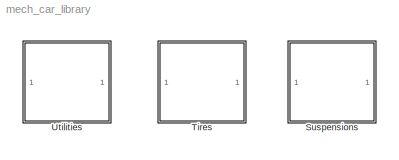
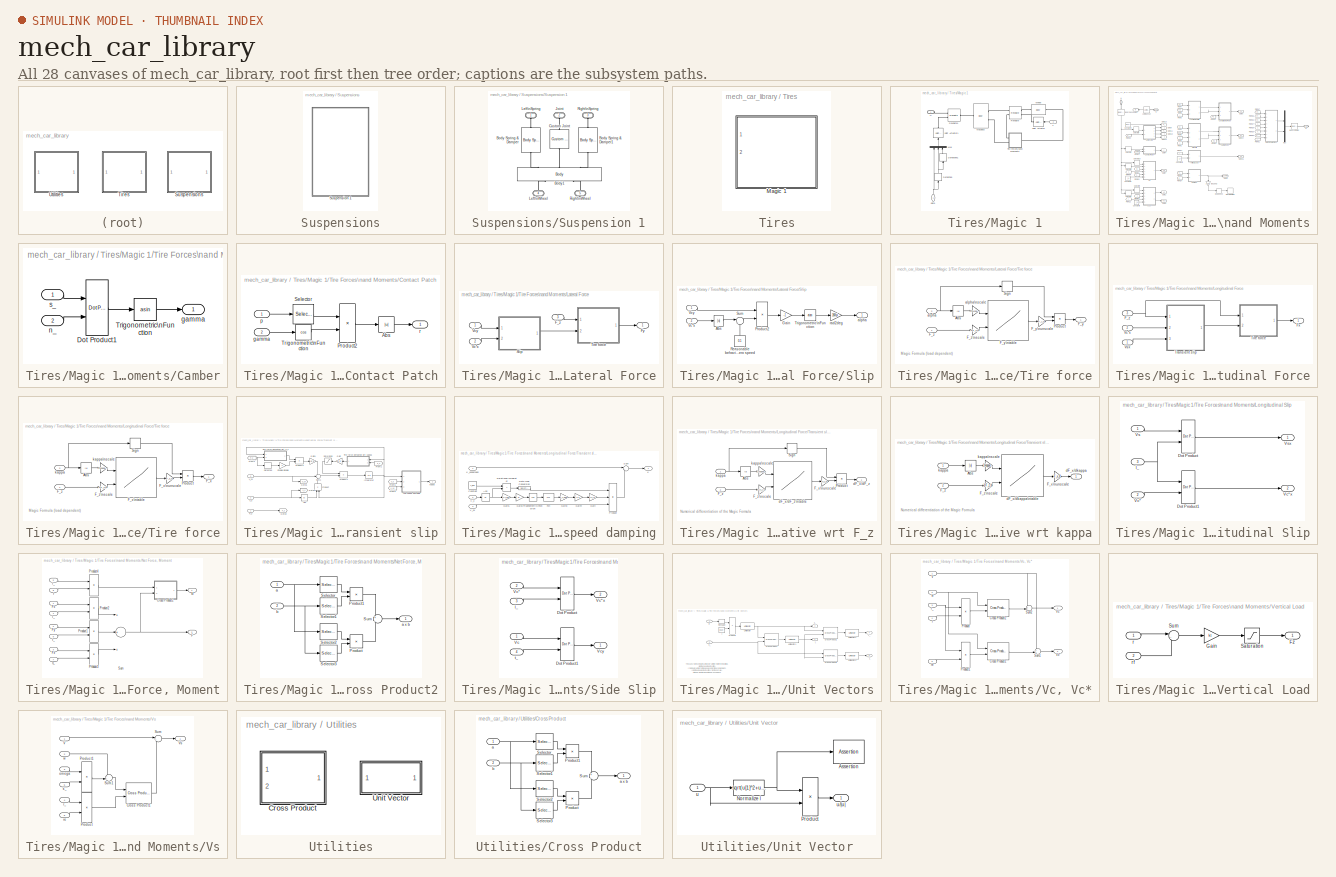
[diagram: thumbnail index - all 28 canvases of the model, root first then tree order]
MODEL mech_car_library
KIND library
BLOCK [SubSystem] Suspensions
  FunctionWithSeparateData = off
  MaskHideContents = off
  MinAlgLoopOccurrences = off
  Opaque = off
  Ports = []
  PropExecContextOutsideSubsystem = off
  RTWSystemCode = Auto
  RequestExecContextInheritance = off
BLOCK [SubSystem] Suspensions/Suspension 1
  FunctionWithSeparateData = off
  MaskCallbackString = |||||||
  MaskEnableString = on,on,on,on,on,on,on,on
  MaskHideContents = off
  MaskIconFrame = on
  MaskIconOpaque = on
  MaskIconRotate = none
  MaskIconUnits = autoscale
  MaskInitialization = I_zz_u = I_xx_u;
  MaskPromptString = Roll centre height [m]:|Track width [m]:|Wheel radius [m]:|Suspension stiffness [N/m]:|Suspension damping [N.s/m]:|Mass [kg]:|Roll inertia [kg.m2]:|Yaw inertia [kg.m2]:
  MaskStyleString = edit,edit,edit,edit,edit,edit,edit,edit
  MaskTabNameString = ,,,,,,,
  MaskToolTipString = on,on,on,on,on,on,on,on
  MaskTunableValueString = on,on,on,on,on,on,on,on
  MaskValueString = 0.742|2|0.53|190e3|2025|706|0|440
  MaskVarAliasString = ,,,,,,,
  MaskVariables = r=@1;d=@2;h_u=@3;k=@4;b=@5;m_u=@6;I_xx_u=@7;I_yy_u=@8;
  MaskVisibilityString = on,on,on,on,on,on,on,on
  MinAlgLoopOccurrences = off
  Opaque = off
  Ports = [0, 0, 0, 0, 0, 3, 2]
  PropExecContextOutsideSubsystem = off
  RTWSystemCode = Auto
  RequestExecContextInheritance = off
BLOCK [Reference] Suspensions/Suspension 1/Body Spring & Damper  REF=mblibv1/Force \nElements/Body Spring & Damper
  ClassName = BodyForceElement
  Damper_b = b
  DialogClass = BodySpringDamper
  DialogController = MECH.DynMechDlgSource
  ForceUnits = N
  FunctionWithSeparateData = off
  Offset_x0 = 0
  Ports = [0, 0, 0, 0, 0, 1, 1]
  PositionUnits = m
  RTWMemSecDataConstants = Inherit from model
  RTWMemSecDataInternal = Inherit from model
  RTWMemSecDataParameters = Inherit from model
  RTWMemSecFuncExecute = Inherit from model
  RTWMemSecFuncInitTerm = Inherit from model
  ShowPortLabels = FromPortIcon
  SourceBlock = mblibv1/Force \nElements/Body Spring & Damper
  SourceType = Body Spring & Damper
  Spring_k = k
  SystemSampleTime = -1
  VelocityUnits = m/s
BLOCK [Reference] Suspensions/Suspension 1/Body Spring & Damper1  REF=mblibv1/Force \nElements/Body Spring & Damper
  ClassName = BodyForceElement
  Damper_b = b
  DialogClass = BodySpringDamper
  DialogController = MECH.DynMechDlgSource
  ForceUnits = N
  FunctionWithSeparateData = off
  Offset_x0 = 0
  Ports = [0, 0, 0, 0, 0, 1, 1]
  PositionUnits = m
  RTWMemSecDataConstants = Inherit from model
  RTWMemSecDataInternal = Inherit from model
  RTWMemSecDataParameters = Inherit from model
  RTWMemSecFuncExecute = Inherit from model
  RTWMemSecFuncInitTerm = Inherit from model
  ShowPortLabels = FromPortIcon
  SourceBlock = mblibv1/Force \nElements/Body Spring & Damper
  SourceType = Body Spring & Damper
  Spring_k = k
  SystemSampleTime = -1
  VelocityUnits = m/s
BLOCK [Reference] Suspensions/Suspension 1/Body1  REF=mblibv1/Bodies/Body
  AttachedToCS = 1
  BodyColor = [0.5 0.5 0.5]
  CG = Left$CG$[0 0 0]$CS2$CS2$m$[0 0 0]$Euler X-Y-Z$deg$WORLD$false
  CGPos = [0 0 0]
  CGRot = [0 0 0]
  CS0Pos = []
  CS0Rot = []
  CS10Pos = []
  CS10Rot = []
  CS11Pos = []
  CS11Rot = []
  CS12Pos = []
  CS12Rot = []
  CS13Pos = []
  CS13Rot = []
  CS14Pos = []
  CS14Rot = []
  CS15Pos = []
  CS15Rot = []
  CS16Pos = []
  CS16Rot = []
  CS17Pos = []
  CS17Rot = []
  CS18Pos = []
  CS18Rot = []
  CS19Pos = []
  CS19Rot = []
  CS1Pos = [0 0 0]
  CS1Rot = [0 0 0]
  CS20Pos = []
  CS20Rot = []
  CS2Pos = [0 0 0]
  CS2Rot = [0 0 0]
  CS3Pos = []
  CS3Rot = []
  CS4Pos = []
  CS4Rot = []
  CS5Pos = []
  CS5Rot = []
  CS6Pos = []
  CS6Rot = []
  CS7Pos = []
  CS7Rot = []
  CS8Pos = []
  CS8Rot = []
  CS9Pos = []
  CS9Rot = []
  ClassName = Body
  Density = 1
  DensityUnits = kg/m^3
  DensityUse = false
  DialogClass = MechanicalBodyBlock
  DialogController = MECH.DynMechDlgSource
  GraphicsMode = 1
  GraphicsObj = []
  Inertia = diag([I_xx_u,I_yy_u,I_zz_u])
  InertiaUnits = kg*m^2
  LConnTagsString = CS1|CS2|CS3
  LeftPortType = workingframe
  Mass = m_u
  MassUnits = kg
  PhysicalDomain = mechanical
  Ports = [0, 0, 0, 0, 0, 3, 2]
  RConnTagsString = CS4|CS5
  RightPortType = workingframe
  Shape = Cylinder
  ShapeDims = [1 1]
  ShapeUnits = m
  ShapeUse = false
  SourceBlock = mblibv1/Bodies/Body
  SourceType = Body
  SubClassName = Unknown
  WorkingFrames = Left$CS1$[0,d/2,0]$CS2$CS2$m$[0 0 0]$Euler X-Y-Z$deg$WORLD$true#Left$CS2$[0,0,0]$ADJOINING$ADJOINING$m$[0 0 0]$Euler X-Y-Z$deg$WORLD$true#Left$CS3$[0,-d/2,0]$CS2$CS2$m$[0 0 0]$Euler X-Y-Z$deg$WORLD$true#Right$CS4$[0,d/2,h_u-r]$CS2$CS2$m$[0 0 0]$Euler X-Y-Z$deg$WORLD$true#Right$CS5$[0,-d/2,h_u-r]$CS2$CS2$m$[0 0 0]$Euler X-Y-Z$deg$WORLD$true
BLOCK [Reference] Suspensions/Suspension 1/Custom Joint  REF=mblibv1/Joints/Custom Joint
  ClassName = Joint
  CutJoint = off
  DialogClass = JointBlock
  DialogController = MECH.DynMechDlgSource
  LConnTagsString = __newl0
  LeftPortType = blob
  MarkAsCut = off
  NumSAPorts = 0
  P1Axis = []
  P2Axis = []
  P3Axis = []
  PhysicalDomain = mechanical
  Ports = [0, 0, 0, 0, 0, 1, 1]
  PrimitiveProps = P1$Base$[0 0 1]$prismatic#R1$Base$[1 0 0]$revolute
  Primitives = prismatic_revolute
  R1Axis = [1 0 0]
  R2Axis = []
  R3Axis = []
  RConnTagsString = __newr0
  RightPortType = blob
  SAxis = []
  SourceBlock = mblibv1/Joints/Custom Joint
  SourceType = Custom Joint
  SubClassName = custom_joint
BLOCK [PMIOPort] Suspensions/Suspension 1/Joint
  Port = 2
  Side = Left
BLOCK [PMIOPort] Suspensions/Suspension 1/Left\nSpring
  Port = 1
  Side = Left
BLOCK [PMIOPort] Suspensions/Suspension 1/Left\nWheel
  Port = 4
  Side = Right
BLOCK [PMIOPort] Suspensions/Suspension 1/Right\nSpring
  Port = 3
  Side = Left
BLOCK [PMIOPort] Suspensions/Suspension 1/Right\nWheel
  Port = 5
  Side = Right
BLOCK [SubSystem] Tires
  FunctionWithSeparateData = off
  MaskHideContents = off
  MinAlgLoopOccurrences = off
  Opaque = off
  Ports = []
  PropExecContextOutsideSubsystem = off
  RTWSystemCode = Auto
  RequestExecContextInheritance = off
BLOCK [SubSystem] Tires/Magic 1
  FunctionWithSeparateData = off
  MaskCallbackString = |||||||||
  MaskEnableString = on,on,on,on,on,on,on,on,on,on
  MaskHideContents = off
  MaskIconFrame = on
  MaskIconOpaque = on
  MaskIconRotate = none
  MaskIconUnits = autoscale
  MaskPromptString = Effective rolling radius [m]:|Unloaded radius [m]:|Wheel mass [kg]:|Rated vertical load [N]:|Peak longitudinal force at rated load [N]:|Best slip at rated load [percent]:|Peak lateral force at rated load [N]:|Best sideslip at rated load [deg]:|Relaxation length at rated load [m]:|Vertical stiffness
  MaskStyleString = edit,edit,edit,edit,edit,edit,edit,edit,edit,edit
  MaskTabNameString = ,,,,,,,,,
  MaskToolTipString = on,on,on,on,on,on,on,on,on,on
  MaskTunableValueString = on,on,on,on,on,on,on,on,on,on
  MaskValueString = 0.53|0.55|10|25000|15000|10|15000|10|1.6|1030000
  MaskVarAliasString = ,,,,,,,,,
  MaskVariables = r_e=@1;r_f=@2;m_w=@3;F_z=@4;F_x_max=@5;kappa_max=@6;F_y_max=@7;alpha_max=@8;sigma_k=@9;kt=@10;
  MaskVisibilityString = on,on,on,on,on,on,on,on,on,on
  MinAlgLoopOccurrences = off
  Opaque = off
  Ports = [2, 0, 0, 0, 0, 1]
  PropExecContextOutsideSubsystem = off
  RTWSystemCode = Auto
  RequestExecContextInheritance = off
BLOCK [Derivative] Tires/Magic 1/Derivative
BLOCK [Derivative] Tires/Magic 1/Derivative1
BLOCK [PMIOPort] Tires/Magic 1/H
  Port = 1
  Side = Left
BLOCK [Reference] Tires/Magic 1/Joint Actuator  REF=mblibv1/Sensors & \nActuators/Joint Actuator
  AccelerationUnits = m/s^2
  ActiveIO = on
  ActuationStyle = Force
  AngleUnits = deg
  ArcAccelerationUnits = deg/s^2
  ArcVelocityUnits = deg/s
  ClassName = JointActuator
  CoordPositionUnits = m
  DialogClass = MechanicalActuatorBlock
  DialogController = MECH.DynMechDlgSource
  ForceUnits = N
  FunctionWithSeparateData = off
  PhysicalDomain = Mechanical
  PortType = blob
  Ports = [1, 0, 0, 0, 0, 0, 1]
  Primitive = R1
  RTWMemSecDataConstants = Inherit from model
  RTWMemSecDataInternal = Inherit from model
  RTWMemSecDataParameters = Inherit from model
  RTWMemSecFuncExecute = Inherit from model
  RTWMemSecFuncInitTerm = Inherit from model
  ReferenceFrame = Absolute (INERTIAL)
  ShowPortLabels = FromPortIcon
  SourceBlock = mblibv1/Sensors & \nActuators/Joint Actuator
  SourceType = Joint Actuator
  SystemSampleTime = -1
  TorqueUnits = N-m
  VelocityUnits = m/s
  Width = 1
BLOCK [Reference] Tires/Magic 1/Joint Actuator1  REF=mblibv1/Sensors & \nActuators/Joint Actuator
  AccelerationUnits = m/s^2
  ActiveIO = on
  ActuationStyle = Motion
  AngleUnits = deg
  ArcAccelerationUnits = deg/s^2
  ArcVelocityUnits = deg/s
  ClassName = JointActuator
  CoordPositionUnits = m
  DialogClass = MechanicalActuatorBlock
  DialogController = MECH.DynMechDlgSource
  ForceUnits = N
  FunctionWithSeparateData = off
  PhysicalDomain = Mechanical
  PortType = blob
  Ports = [1, 0, 0, 0, 0, 0, 1]
  Primitive = R1
  RTWMemSecDataConstants = Inherit from model
  RTWMemSecDataInternal = Inherit from model
  RTWMemSecDataParameters = Inherit from model
  RTWMemSecFuncExecute = Inherit from model
  RTWMemSecFuncInitTerm = Inherit from model
  ReferenceFrame = Absolute (INERTIAL)
  ShowPortLabels = FromPortIcon
  SourceBlock = mblibv1/Sensors & \nActuators/Joint Actuator
  SourceType = Joint Actuator
  SystemSampleTime = -1
  TorqueUnits = N-m
  VelocityUnits = m/s
  Width = 3
BLOCK [Reference] Tires/Magic 1/Massless  REF=mblibv1/Bodies/Body
  AttachedToCS = 1
  BodyColor = [0.5 0.5 0.5]
  CG = Left$CG$[0 0 0]$CS1$CS1$m$[0 0 0]$Euler X-Y-Z$deg$WORLD$false
  CGPos = [0 0 0]
  CGRot = [0 0 0]
  CS0Pos = []
  CS0Rot = []
  CS10Pos = []
  CS10Rot = []
  CS11Pos = []
  CS11Rot = []
  CS12Pos = []
  CS12Rot = []
  CS13Pos = []
  CS13Rot = []
  CS14Pos = []
  CS14Rot = []
  CS15Pos = []
  CS15Rot = []
  CS16Pos = []
  CS16Rot = []
  CS17Pos = []
  CS17Rot = []
  CS18Pos = []
  CS18Rot = []
  CS19Pos = []
  CS19Rot = []
  CS1Pos = [0 0 0]
  CS1Rot = [0 0 0]
  CS20Pos = []
  CS20Rot = []
  CS2Pos = [0 0 0]
  CS2Rot = [0 0 0]
  CS3Pos = []
  CS3Rot = []
  CS4Pos = []
  CS4Rot = []
  CS5Pos = []
  CS5Rot = []
  CS6Pos = []
  CS6Rot = []
  CS7Pos = []
  CS7Rot = []
  CS8Pos = []
  CS8Rot = []
  CS9Pos = []
  CS9Rot = []
  ClassName = Body
  Density = 1
  DensityUnits = kg/m^3
  DensityUse = false
  DialogClass = MechanicalBodyBlock
  DialogController = MECH.DynMechDlgSource
  GraphicsMode = 1
  GraphicsObj = []
  Inertia = 0*eye(3)
  InertiaUnits = kg*m^2
  LConnTagsString = CS1
  LeftPortType = workingframe
  Mass = 0
  MassUnits = kg
  PhysicalDomain = mechanical
  Ports = [0, 0, 0, 0, 0, 1, 2]
  RConnTagsString = CS2|CS3
  RightPortType = workingframe
  Shape = Cylinder
  ShapeDims = [1 1]
  ShapeUnits = m
  ShapeUse = false
  SourceBlock = mblibv1/Bodies/Body
  SourceType = Body
  SubClassName = Unknown
  WorkingFrames = Left$CS1$[0 0 0]$ADJOINING$ADJOINING$m$[0 0 0]$Euler X-Y-Z$deg$WORLD$true#Right$CS2$[0 0 0]$CG$CG$m$[0 0 0]$Euler X-Y-Z$deg$WORLD$true#Right$CS3$[0 0 0]$CG$CG$m$[0 0 0]$Euler X-Y-Z$deg$WORLD$true
BLOCK [Mux] Tires/Magic 1/Mux
  DisplayOption = bar
  Inputs = 3
  Ports = [3, 1]
BLOCK [Reference] Tires/Magic 1/Revolute  REF=mblibv1/Joints/Revolute
  ClassName = Joint
  CutJoint = off
  DialogClass = JointBlock
  DialogController = MECH.DynMechDlgSource
  LConnTagsString = __newl0|SA1
  LeftPortType = blob
  MarkAsCut = off
  NumSAPorts = 2
  PhysicalDomain = mechanical
  Ports = [0, 0, 0, 0, 0, 2, 2]
  PrimitiveProps = R1$Base$[0 1 0]$revolute
  Primitives = revolute
  R1Axis = [0 0 1]
  RConnTagsString = __newr0|SA1
  RightPortType = blob
  SourceBlock = mblibv1/Joints/Revolute
  SourceType = Revolute
  SubClassName = Unknown
BLOCK [Reference] Tires/Magic 1/Revolute1  REF=mblibv1/Joints/Revolute
  ClassName = Joint
  CutJoint = off
  DialogClass = JointBlock
  DialogController = MECH.DynMechDlgSource
  LConnTagsString = __newl0|SA1
  LeftPortType = blob
  MarkAsCut = off
  NumSAPorts = 1
  PhysicalDomain = mechanical
  Ports = [0, 0, 0, 0, 0, 2, 1]
  PrimitiveProps = R1$Base$[0 0 1]$revolute
  Primitives = revolute
  R1Axis = [0 0 1]
  RConnTagsString = __newr0
  RightPortType = blob
  SourceBlock = mblibv1/Joints/Revolute
  SourceType = Revolute
  SubClassName = Unknown
BLOCK [Inport] Tires/Magic 1/T
  IconDisplay = Port number
  OutDataType = sfix(16)
  OutScaling = 2^0
  Port = 2
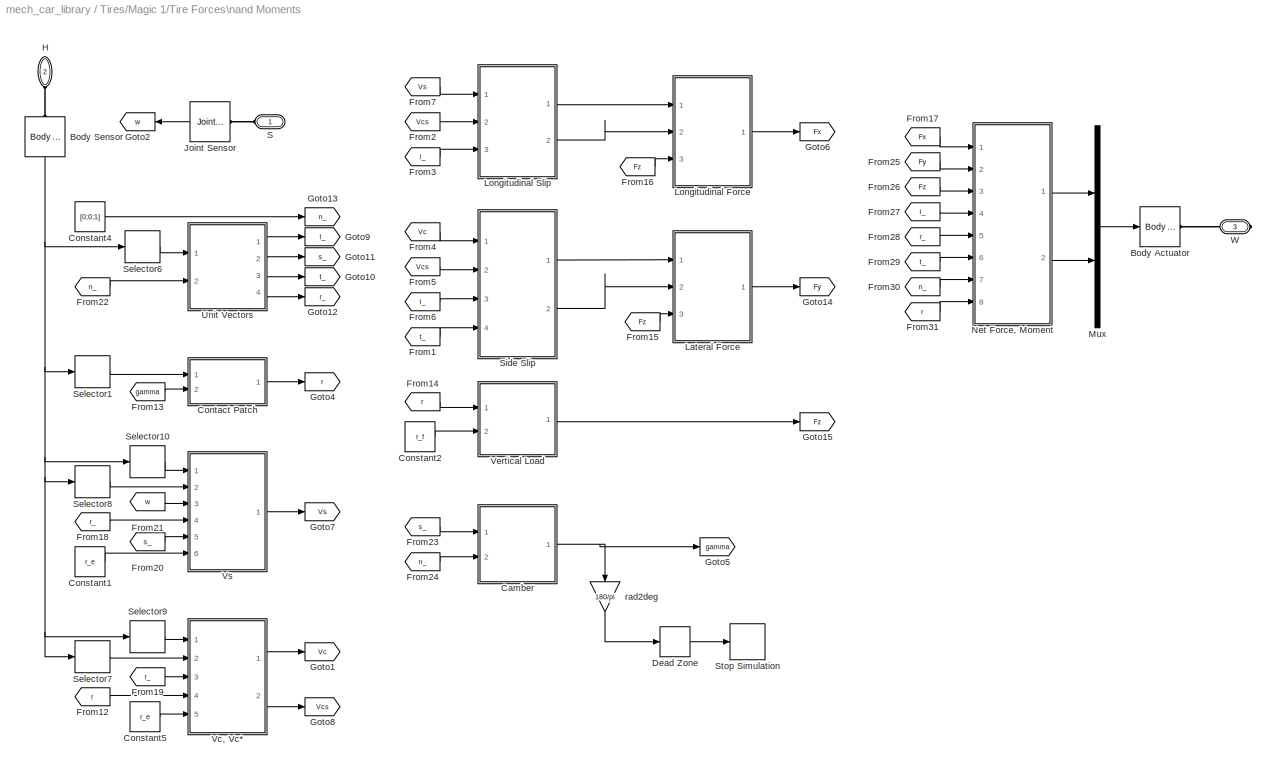
BLOCK [SubSystem] Tires/Magic 1/Tire Forces\nand Moments
  FunctionWithSeparateData = off
  MaskHideContents = off
  MinAlgLoopOccurrences = off
  Opaque = off
  Ports = [0, 0, 0, 0, 0, 2, 1]
  PropExecContextOutsideSubsystem = off
  RTWSystemCode = Auto
  RequestExecContextInheritance = off
BLOCK [Reference] Tires/Magic 1/Tire Forces\nand Moments/Body Actuator  REF=mblibv1/Sensors & \nActuators/Body Actuator
  AccelerationUnits = m/s^2
  ActiveIO = on
  ActuationStyle = Force
  Angle = off
  AngleUnits = deg
  ArcAccelerationUnits = deg/s^2
  ArcVelocityUnits = deg/s
  ClassName = BodyActuatorForceTorque
  CoordPosition = on
  CoordPositionUnits = m
  DialogClass = MechanicalActuatorBlock
  DialogController = MECH.DynMechDlgSource
  Force = on
  ForceUnits = N
  FunctionWithSeparateData = off
  PhysicalDomain = Mechanical
  PortType = blob
  Ports = [1, 0, 0, 0, 0, 0, 1]
  RTWMemSecDataConstants = Inherit from model
  RTWMemSecDataInternal = Inherit from model
  RTWMemSecDataParameters = Inherit from model
  RTWMemSecFuncExecute = Inherit from model
  RTWMemSecFuncInitTerm = Inherit from model
  ReferenceFrame = Absolute (World)
  ShowPortLabels = FromPortIcon
  SourceBlock = mblibv1/Sensors & \nActuators/Body Actuator
  SourceType = Body Actuator
  SystemSampleTime = -1
  Torque = on
  TorqueUnits = N-m
  VelocityUnits = m/s
  Width = 6
BLOCK [Reference] Tires/Magic 1/Tire Forces\nand Moments/Body Sensor  REF=mblibv1/Sensors & \nActuators/Body Sensor
  Acceleration = off
  AccelerationUnits = m/s^2
  ActiveIO = on
  Angle = on
  AngleUnits = deg
  ArcAcceleration = off
  ArcAccelerationUnits = rad/s^2
  ArcVelocity = on
  ArcVelocityUnits = rad/s
  ClassName = BodySensor
  CoordPosition = on
  CoordPositionUnits = m
  DialogClass = MechanicalSensorBlock
  DialogController = MECH.DynMechDlgSource
  FunctionWithSeparateData = off
  Muxed = on
  OutputVector = [ 3 3 3 9 ]
  PhysicalDomain = Mechanical
  PortType = blob
  Ports = [0, 1, 0, 0, 0, 1]
  Pose = on
  Quaternion = on
  QuaternionDDT = off
  QuaternionDT = off
  QuaternionUnits = off
  RTWMemSecDataConstants = Inherit from model
  RTWMemSecDataInternal = Inherit from model
  RTWMemSecDataParameters = Inherit from model
  RTWMemSecFuncExecute = Inherit from model
  RTWMemSecFuncInitTerm = Inherit from model
  ReferenceFrame = Absolute (World)
  ShowPortLabels = FromPortIcon
  SourceBlock = mblibv1/Sensors & \nActuators/Body Sensor
  SourceType = Body Sensor
  SystemSampleTime = -1
  Velocity = on
  VelocityUnits = m/s
  Width = 18
BLOCK [SubSystem] Tires/Magic 1/Tire Forces\nand Moments/Camber
  FunctionWithSeparateData = off
  MaskHideContents = off
  MinAlgLoopOccurrences = off
  Opaque = off
  Ports = [2, 1]
  PropExecContextOutsideSubsystem = off
  RTWSystemCode = Auto
  RequestExecContextInheritance = off
BLOCK [Reference] Tires/Magic 1/Tire Forces\nand Moments/Camber/Dot Product1  REF=simulink/Math\nOperations/Dot Product
  DoSatur = off
  InputSameDT = on
  LockScale = off
  OutDataType = sfix(16)
  OutDataTypeStr = Inherit: Inherit via internal rule
  OutScaling = 2^-10
  OutputDataTypeScalingMode = Inherit via internal rule
  Ports = [2, 1]
  RndMeth = Floor
  SourceBlock = simulink/Math\nOperations/Dot Product
  SourceType = Dot Product
BLOCK [Trigonometry] Tires/Magic 1/Tire Forces\nand Moments/Camber/Trigonometric\nFunction
  Operator = asin
  Ports = [1, 1]
BLOCK [Outport] Tires/Magic 1/Tire Forces\nand Moments/Camber/gamma
  IconDisplay = Port number
  OutDataType = sfix(16)
  OutScaling = 2^0
BLOCK [Inport] Tires/Magic 1/Tire Forces\nand Moments/Camber/n_
  IconDisplay = Port number
  OutDataType = sfix(16)
  OutScaling = 2^0
  Port = 2
BLOCK [Inport] Tires/Magic 1/Tire Forces\nand Moments/Camber/s_
  IconDisplay = Port number
  OutDataType = sfix(16)
  OutScaling = 2^0
BLOCK [Constant] Tires/Magic 1/Tire Forces\nand Moments/Constant1
  OutDataType = sfix(16)
  OutScaling = 2^0
  Value = r_e
BLOCK [Constant] Tires/Magic 1/Tire Forces\nand Moments/Constant2
  OutDataType = sfix(16)
  OutScaling = 2^0
  Value = r_f
BLOCK [Constant] Tires/Magic 1/Tire Forces\nand Moments/Constant4
  OutDataType = sfix(16)
  OutScaling = 2^0
  Value = [0;0;1]
BLOCK [Constant] Tires/Magic 1/Tire Forces\nand Moments/Constant5
  OutDataType = sfix(16)
  OutScaling = 2^0
  Value = r_e
BLOCK [SubSystem] Tires/Magic 1/Tire Forces\nand Moments/Contact Patch
  FunctionWithSeparateData = off
  MaskHideContents = off
  MinAlgLoopOccurrences = off
  Opaque = off
  Ports = [2, 1]
  PropExecContextOutsideSubsystem = off
  RTWSystemCode = Auto
  RequestExecContextInheritance = off
BLOCK [Abs] Tires/Magic 1/Tire Forces\nand Moments/Contact Patch/Abs
  SaturateOnIntegerOverflow = off
BLOCK [Product] Tires/Magic 1/Tire Forces\nand Moments/Contact Patch/Product2
  InputSameDT = off
  Inputs = */
  OutDataType = sfix(16)
  OutDataTypeMode = Inherit via internal rule
  OutDataTypeStr = Inherit: Inherit via internal rule
  OutScaling = 2^0
  Ports = [2, 1]
  SaturateOnIntegerOverflow = off
BLOCK [Selector] Tires/Magic 1/Tire Forces\nand Moments/Contact Patch/Selector
  IndexOptions = Index vector (dialog)
  Indices = 3
  InputPortWidth = 3
  OutputSizes = 1
  Ports = [1, 1]
BLOCK [Trigonometry] Tires/Magic 1/Tire Forces\nand Moments/Contact Patch/Trigonometric\nFunction
  Operator = cos
  Ports = [1, 1]
BLOCK [Inport] Tires/Magic 1/Tire Forces\nand Moments/Contact Patch/gamma
  IconDisplay = Port number
  OutDataType = sfix(16)
  OutScaling = 2^0
  Port = 2
BLOCK [Inport] Tires/Magic 1/Tire Forces\nand Moments/Contact Patch/p
  IconDisplay = Port number
  OutDataType = sfix(16)
  OutScaling = 2^0
BLOCK [Outport] Tires/Magic 1/Tire Forces\nand Moments/Contact Patch/r
  IconDisplay = Port number
  OutDataType = sfix(16)
  OutScaling = 2^0
BLOCK [DeadZone] Tires/Magic 1/Tire Forces\nand Moments/Dead Zone
  LowerValue = -70
  UpperValue = 70
  ZeroCross = off
BLOCK [From] Tires/Magic 1/Tire Forces\nand Moments/From1
  CloseFcn = tagdialog Close
  GotoTag = t_
BLOCK [From] Tires/Magic 1/Tire Forces\nand Moments/From12
  CloseFcn = tagdialog Close
  GotoTag = r
BLOCK [From] Tires/Magic 1/Tire Forces\nand Moments/From13
  CloseFcn = tagdialog Close
  GotoTag = gamma
BLOCK [From] Tires/Magic 1/Tire Forces\nand Moments/From14
  CloseFcn = tagdialog Close
  GotoTag = r
BLOCK [From] Tires/Magic 1/Tire Forces\nand Moments/From15
  CloseFcn = tagdialog Close
  GotoTag = Fz
BLOCK [From] Tires/Magic 1/Tire Forces\nand Moments/From16
  CloseFcn = tagdialog Close
  GotoTag = Fz
BLOCK [From] Tires/Magic 1/Tire Forces\nand Moments/From17
  CloseFcn = tagdialog Close
  GotoTag = Fx
BLOCK [From] Tires/Magic 1/Tire Forces\nand Moments/From18
  CloseFcn = tagdialog Close
  GotoTag = r_
BLOCK [From] Tires/Magic 1/Tire Forces\nand Moments/From19
  CloseFcn = tagdialog Close
  GotoTag = r_
BLOCK [From] Tires/Magic 1/Tire Forces\nand Moments/From2
  CloseFcn = tagdialog Close
  GotoTag = Vcs
BLOCK [From] Tires/Magic 1/Tire Forces\nand Moments/From20
  CloseFcn = tagdialog Close
  GotoTag = s_
BLOCK [From] Tires/Magic 1/Tire Forces\nand Moments/From21
  CloseFcn = tagdialog Close
  GotoTag = w
BLOCK [From] Tires/Magic 1/Tire Forces\nand Moments/From22
  CloseFcn = tagdialog Close
  GotoTag = n_
BLOCK [From] Tires/Magic 1/Tire Forces\nand Moments/From23
  CloseFcn = tagdialog Close
  GotoTag = s_
BLOCK [From] Tires/Magic 1/Tire Forces\nand Moments/From24
  CloseFcn = tagdialog Close
  GotoTag = n_
BLOCK [From] Tires/Magic 1/Tire Forces\nand Moments/From25
  CloseFcn = tagdialog Close
  GotoTag = Fy
BLOCK [From] Tires/Magic 1/Tire Forces\nand Moments/From26
  CloseFcn = tagdialog Close
  GotoTag = Fz
BLOCK [From] Tires/Magic 1/Tire Forces\nand Moments/From27
  CloseFcn = tagdialog Close
  GotoTag = l_
BLOCK [From] Tires/Magic 1/Tire Forces\nand Moments/From28
  CloseFcn = tagdialog Close
  GotoTag = r_
BLOCK [From] Tires/Magic 1/Tire Forces\nand Moments/From29
  CloseFcn = tagdialog Close
  GotoTag = t_
BLOCK [From] Tires/Magic 1/Tire Forces\nand Moments/From3
  CloseFcn = tagdialog Close
  GotoTag = l_
BLOCK [From] Tires/Magic 1/Tire Forces\nand Moments/From30
  CloseFcn = tagdialog Close
  GotoTag = n_
BLOCK [From] Tires/Magic 1/Tire Forces\nand Moments/From31
  CloseFcn = tagdialog Close
  GotoTag = r
BLOCK [From] Tires/Magic 1/Tire Forces\nand Moments/From4
  CloseFcn = tagdialog Close
  GotoTag = Vc
BLOCK [From] Tires/Magic 1/Tire Forces\nand Moments/From5
  CloseFcn = tagdialog Close
  GotoTag = Vcs
BLOCK [From] Tires/Magic 1/Tire Forces\nand Moments/From6
  CloseFcn = tagdialog Close
  GotoTag = l_
BLOCK [From] Tires/Magic 1/Tire Forces\nand Moments/From7
  CloseFcn = tagdialog Close
  GotoTag = Vs
BLOCK [Goto] Tires/Magic 1/Tire Forces\nand Moments/Goto1
  GotoTag = Vc
  TagVisibility = local
BLOCK [Goto] Tires/Magic 1/Tire Forces\nand Moments/Goto10
  GotoTag = t_
  TagVisibility = local
BLOCK [Goto] Tires/Magic 1/Tire Forces\nand Moments/Goto11
  GotoTag = s_
  TagVisibility = local
BLOCK [Goto] Tires/Magic 1/Tire Forces\nand Moments/Goto12
  GotoTag = r_
  TagVisibility = local
BLOCK [Goto] Tires/Magic 1/Tire Forces\nand Moments/Goto13
  GotoTag = n_
  TagVisibility = local
BLOCK [Goto] Tires/Magic 1/Tire Forces\nand Moments/Goto14
  GotoTag = Fy
  TagVisibility = local
BLOCK [Goto] Tires/Magic 1/Tire Forces\nand Moments/Goto15
  GotoTag = Fz
  TagVisibility = local
BLOCK [Goto] Tires/Magic 1/Tire Forces\nand Moments/Goto2
  GotoTag = w
  TagVisibility = local
BLOCK [Goto] Tires/Magic 1/Tire Forces\nand Moments/Goto4
  GotoTag = r
  TagVisibility = local
BLOCK [Goto] Tires/Magic 1/Tire Forces\nand Moments/Goto5
  GotoTag = gamma
  TagVisibility = local
BLOCK [Goto] Tires/Magic 1/Tire Forces\nand Moments/Goto6
  GotoTag = Fx
  TagVisibility = local
BLOCK [Goto] Tires/Magic 1/Tire Forces\nand Moments/Goto7
  GotoTag = Vs
  TagVisibility = local
BLOCK [Goto] Tires/Magic 1/Tire Forces\nand Moments/Goto8
  GotoTag = Vcs
  TagVisibility = local
BLOCK [Goto] Tires/Magic 1/Tire Forces\nand Moments/Goto9
  GotoTag = l_
  TagVisibility = local
BLOCK [PMIOPort] Tires/Magic 1/Tire Forces\nand Moments/H
  Port = 2
  Side = Left
BLOCK [Reference] Tires/Magic 1/Tire Forces\nand Moments/Joint Sensor  REF=mblibv1/Sensors & \nActuators/Joint Sensor
  Acceleration = off
  AccelerationUnits = m/s^2
  ActiveIO = on
  Angle = off
  AngleUnits = deg
  ArcAcceleration = off
  ArcAccelerationUnits = deg/s^2
  ArcVelocity = on
  ArcVelocityUnits = rad/s
  ClassName = JointSensor
  CoordPosition = on
  CoordPositionUnits = m
  DialogClass = MechanicalSensorBlock
  DialogController = MECH.DynMechDlgSource
  Force = off
  ForceUnits = N
  FunctionWithSeparateData = off
  Muxed = on
  OutputVector = [ 1 ]
  PhysicalDomain = Mechanical
  PortType = blob
  Ports = [0, 1, 0, 0, 0, 1]
  Pose = off
  Primitive = R1
  Quaternion = on
  QuaternionDDT = off
  QuaternionDT = off
  QuaternionUnits = off
  RTWMemSecDataConstants = Inherit from model
  RTWMemSecDataInternal = Inherit from model
  RTWMemSecDataParameters = Inherit from model
  RTWMemSecFuncExecute = Inherit from model
  RTWMemSecFuncInitTerm = Inherit from model
  ReactionForce = off
  ReactionForceUnits = N
  ReactionMoment = off
  ReactionMomentUnits = N-m
  ReactionReferenceFrame = Absolute (World)
  ReactionSensedSide = Base
  ReferenceFrame = Absolute (INERTIAL)
  ShowPortLabels = FromPortIcon
  SourceBlock = mblibv1/Sensors & \nActuators/Joint Sensor
  SourceType = Joint Sensor
  SystemSampleTime = -1
  Torque = off
  TorqueUnits = N-m
  Velocity = off
  VelocityUnits = m/s
  Width = 1
BLOCK [SubSystem] Tires/Magic 1/Tire Forces\nand Moments/Lateral Force
  FunctionWithSeparateData = off
  MaskCallbackString = ||
  MaskEnableString = on,on,on
  MaskHideContents = off
  MaskIconFrame = on
  MaskIconOpaque = on
  MaskIconRotate = none
  MaskIconUnits = autoscale
  MaskInitialization = % Scaling factors\nF_z_sf = F_z/3139.2;\nF_y_sf = F_y_max/3564.1;\nalpha_sf = alpha_max/9.99;\n% Magic formula parameters\na1 = -24.1;\na2 = 1211;\na3 = 1178;\na4 = 1.82;\na5 = 0.208;\na6 = 0;\na7 = -0.354;\na8 = 0.707;\n% Lookup table parameters\nalpha_bp = [0:0.1:19.9 20:1:50];\nF_z_bp = linspace(0,2*max(F_z(:)),101);\n[alpha_grid, F_z_grid] = meshgrid(alpha_bp, F_z_bp);\nF_y_grid = tire_Fy(alph...<+50ch>
  MaskPromptString = Rated vertical load [N]:|Peak lateral force at rated load [N]:|Slip at peak force at rated load [degrees]:
  MaskStyleString = edit,edit,edit
  MaskTabNameString = ,,
  MaskToolTipString = on,on,on
  MaskTunableValueString = off,off,off
  MaskType = Tire Lateral Force
  MaskValueString = F_z|F_y_max|alpha_max
  MaskVarAliasString = ,,
  MaskVariables = F_z=@1;F_y_max=@2;alpha_max=@3;
  MaskVisibilityString = on,on,on
  MinAlgLoopOccurrences = off
  Opaque = off
  Ports = [3, 1]
  PropExecContextOutsideSubsystem = off
  RTWSystemCode = Auto
  RequestExecContextInheritance = off
BLOCK [Inport] Tires/Magic 1/Tire Forces\nand Moments/Lateral Force/F_z
  IconDisplay = Port number
  OutDataType = sfix(16)
  OutScaling = 2^0
  Port = 3
BLOCK [Outport] Tires/Magic 1/Tire Forces\nand Moments/Lateral Force/Fy
  IconDisplay = Port number
  OutDataType = sfix(16)
  OutScaling = 2^0
BLOCK [SubSystem] Tires/Magic 1/Tire Forces\nand Moments/Lateral Force/Slip
  FunctionWithSeparateData = off
  MaskHideContents = off
  MinAlgLoopOccurrences = off
  Opaque = off
  Ports = [2, 1]
  PropExecContextOutsideSubsystem = off
  RTWSystemCode = Auto
  RequestExecContextInheritance = off
BLOCK [Abs] Tires/Magic 1/Tire Forces\nand Moments/Lateral Force/Slip/Abs
  SaturateOnIntegerOverflow = off
  ZeroCross = off
BLOCK [Gain] Tires/Magic 1/Tire Forces\nand Moments/Lateral Force/Slip/Gain
  Gain = -1
  OutDataType = sfix(16)
  OutDataTypeMode = Inherit via internal rule
  OutDataTypeStr = Inherit: Inherit via internal rule
  OutScaling = 2^0
  ParamDataTypeStr = Inherit: Inherit via internal rule
  ParameterDataType = sfix(16)
  ParameterDataTypeMode = Inherit via internal rule
  ParameterScaling = 2^0
  SaturateOnIntegerOverflow = off
BLOCK [Product] Tires/Magic 1/Tire Forces\nand Moments/Lateral Force/Slip/Product2
  InputSameDT = off
  Inputs = */
  OutDataType = sfix(16)
  OutDataTypeMode = Inherit via internal rule
  OutDataTypeStr = Inherit: Inherit via internal rule
  OutScaling = 2^0
  Ports = [2, 1]
  SaturateOnIntegerOverflow = off
BLOCK [Constant] Tires/Magic 1/Tire Forces\nand Moments/Lateral Force/Slip/Reasonable behaviour\naround zero speed
  OutDataType = sfix(16)
  OutScaling = 2^0
  Value = 0.1
BLOCK [Sum] Tires/Magic 1/Tire Forces\nand Moments/Lateral Force/Slip/Sum
  IconShape = round
  InputSameDT = off
  Inputs = |++
  OutDataType = sfix(16)
  OutDataTypeMode = Inherit via internal rule
  OutDataTypeStr = Inherit: Inherit via internal rule
  OutScaling = 2^0
  Ports = [2, 1]
  SaturateOnIntegerOverflow = off
BLOCK [Trigonometry] Tires/Magic 1/Tire Forces\nand Moments/Lateral Force/Slip/Trigonometric\nFunction
  Operator = atan
  Ports = [1, 1]
BLOCK [Inport] Tires/Magic 1/Tire Forces\nand Moments/Lateral Force/Slip/Vc*x
  IconDisplay = Port number
  OutDataType = sfix(16)
  OutScaling = 2^0
  Port = 2
BLOCK [Inport] Tires/Magic 1/Tire Forces\nand Moments/Lateral Force/Slip/Vcy
  IconDisplay = Port number
  OutDataType = sfix(16)
  OutScaling = 2^0
BLOCK [Outport] Tires/Magic 1/Tire Forces\nand Moments/Lateral Force/Slip/alpha
  IconDisplay = Port number
  OutDataType = sfix(16)
  OutScaling = 2^0
BLOCK [Gain] Tires/Magic 1/Tire Forces\nand Moments/Lateral Force/Slip/rad2deg
  Gain = 180/pi
  OutDataType = sfix(16)
  OutDataTypeMode = Inherit via internal rule
  OutDataTypeStr = Inherit: Inherit via internal rule
  OutScaling = 2^0
  ParamDataTypeStr = Inherit: Inherit via internal rule
  ParameterDataType = sfix(16)
  ParameterDataTypeMode = Inherit via internal rule
  ParameterScaling = 2^0
  SaturateOnIntegerOverflow = off
BLOCK [SubSystem] Tires/Magic 1/Tire Forces\nand Moments/Lateral Force/Tire force
  FunctionWithSeparateData = off
  MaskHideContents = off
  MinAlgLoopOccurrences = off
  Opaque = off
  Ports = [2, 1]
  PropExecContextOutsideSubsystem = off
  RTWSystemCode = Auto
  RequestExecContextInheritance = off
BLOCK [Abs] Tires/Magic 1/Tire Forces\nand Moments/Lateral Force/Tire force/Abs
  SaturateOnIntegerOverflow = off
  ZeroCross = off
BLOCK [Outport] Tires/Magic 1/Tire Forces\nand Moments/Lateral Force/Tire force/F_y
  IconDisplay = Port number
  OutDataType = sfix(16)
  OutScaling = 2^0
BLOCK [Lookup2D] Tires/Magic 1/Tire Forces\nand Moments/Lateral Force/Tire force/F_y\ntable
  ColumnIndex = F_z_bp
  InputSameDT = off
  LookUpMeth = Interpolation-Use End Values
  OutDataType = sfix(16)
  OutScaling = 2^0
  RowIndex = alpha_bp
  SaturateOnIntegerOverflow = off
  Table = F_y_grid'
BLOCK [Gain] Tires/Magic 1/Tire Forces\nand Moments/Lateral Force/Tire force/F_y\nunscale
  Gain = F_y_sf
  OutDataType = sfix(16)
  OutDataTypeMode = Inherit via internal rule
  OutDataTypeStr = Inherit: Inherit via internal rule
  OutScaling = 2^0
  ParamDataTypeStr = Inherit: Inherit via internal rule
  ParameterDataType = sfix(16)
  ParameterDataTypeMode = Inherit via internal rule
  ParameterScaling = 2^0
  SaturateOnIntegerOverflow = off
BLOCK [Inport] Tires/Magic 1/Tire Forces\nand Moments/Lateral Force/Tire force/F_z
  IconDisplay = Port number
  OutDataType = sfix(16)
  OutScaling = 2^0
BLOCK [Gain] Tires/Magic 1/Tire Forces\nand Moments/Lateral Force/Tire force/F_z\nscale
  Gain = 1/F_z_sf
  OutDataType = sfix(16)
  OutDataTypeMode = Inherit via internal rule
  OutDataTypeStr = Inherit: Inherit via internal rule
  OutScaling = 2^0
  ParamDataTypeStr = Inherit: Inherit via internal rule
  ParameterDataType = sfix(16)
  ParameterDataTypeMode = Inherit via internal rule
  ParameterScaling = 2^0
  SaturateOnIntegerOverflow = off
BLOCK [Product] Tires/Magic 1/Tire Forces\nand Moments/Lateral Force/Tire force/Product
  InputSameDT = off
  OutDataType = sfix(16)
  OutDataTypeMode = Inherit via internal rule
  OutDataTypeStr = Inherit: Inherit via internal rule
  OutScaling = 2^0
  Ports = [2, 1]
  SaturateOnIntegerOverflow = off
BLOCK [Signum] Tires/Magic 1/Tire Forces\nand Moments/Lateral Force/Tire force/Sign
  ZeroCross = off
BLOCK [Inport] Tires/Magic 1/Tire Forces\nand Moments/Lateral Force/Tire force/alpha
  IconDisplay = Port number
  OutDataType = sfix(16)
  OutScaling = 2^0
  Port = 2
BLOCK [Gain] Tires/Magic 1/Tire Forces\nand Moments/Lateral Force/Tire force/alpha\nscale
  Gain = 1/alpha_sf
  OutDataType = sfix(16)
  OutDataTypeMode = Inherit via internal rule
  OutDataTypeStr = Inherit: Inherit via internal rule
  OutScaling = 2^0
  ParamDataTypeStr = Inherit: Inherit via internal rule
  ParameterDataType = sfix(16)
  ParameterDataTypeMode = Inherit via internal rule
  ParameterScaling = 2^0
  SaturateOnIntegerOverflow = off
BLOCK [Inport] Tires/Magic 1/Tire Forces\nand Moments/Lateral Force/Vc*x
  IconDisplay = Port number
  OutDataType = sfix(16)
  OutScaling = 2^0
  Port = 2
BLOCK [Inport] Tires/Magic 1/Tire Forces\nand Moments/Lateral Force/Vcy
  IconDisplay = Port number
  OutDataType = sfix(16)
  OutScaling = 2^0
BLOCK [SubSystem] Tires/Magic 1/Tire Forces\nand Moments/Longitudinal Force
  FunctionWithSeparateData = off
  MaskCallbackString = |||
  MaskEnableString = on,on,on,on
  MaskHideContents = off
  MaskIconFrame = on
  MaskIconOpaque = on
  MaskIconRotate = none
  MaskIconUnits = autoscale
  MaskInitialization = % Scaling factors\nF_z_sf = F_z/3139.2;\nF_x_sf = F_x_max/3381.3;\nkappa_sf = kappa_max/10.93;\n% Magic formula parameters\na1 = -21.3;\na2 = 1144;\na3 = 49.6;\na4 = 226;\na5 = 0.069;\na6 = -0.006;\na7 = 0.056;\na8 = 0.486;\n% Small-perturbation coefficients\nD_x = a1*(F_z/1000)^2 + a2*(F_z/1000);\nC_x = 1.65;\nB_x = ((a3*(F_z/1000)^2 + a4*(F_z/1000)) / (C_x*D_x*exp(a5*(F_z/1000))))*100;\nE_x = a6...<+594ch>
  MaskPromptString = Rated vertical load [N]:|Peak longitudinal force at rated load [N]:|Slip at peak force at rated load [percent]:|Relaxation length at rated load [m]:
  MaskStyleString = edit,edit,edit,edit
  MaskTabNameString = ,,,
  MaskToolTipString = on,on,on,on
  MaskTunableValueString = off,off,off,off
  MaskType = Tire Longitudinal Force
  MaskValueString = F_z|F_x_max|kappa_max|sigma_k
  MaskVarAliasString = ,,,
  MaskVariables = F_z=@1;F_x_max=@2;kappa_max=@3;sigma_k=@4;
  MaskVisibilityString = on,on,on,on
  MinAlgLoopOccurrences = off
  Opaque = off
  Ports = [3, 1]
  PropExecContextOutsideSubsystem = off
  RTWSystemCode = Auto
  RequestExecContextInheritance = off
BLOCK [Inport] Tires/Magic 1/Tire Forces\nand Moments/Longitudinal Force/F_z
  IconDisplay = Port number
  OutDataType = sfix(16)
  OutScaling = 2^0
  Port = 3
BLOCK [Outport] Tires/Magic 1/Tire Forces\nand Moments/Longitudinal Force/Fx
  IconDisplay = Port number
  OutDataType = sfix(16)
  OutScaling = 2^0
BLOCK [SubSystem] Tires/Magic 1/Tire Forces\nand Moments/Longitudinal Force/Tire force
  FunctionWithSeparateData = off
  MaskHideContents = off
  MinAlgLoopOccurrences = off
  Opaque = off
  Ports = [2, 1]
  PropExecContextOutsideSubsystem = off
  RTWSystemCode = Auto
  RequestExecContextInheritance = off
BLOCK [Abs] Tires/Magic 1/Tire Forces\nand Moments/Longitudinal Force/Tire force/Abs
  SaturateOnIntegerOverflow = off
  ZeroCross = off
BLOCK [Outport] Tires/Magic 1/Tire Forces\nand Moments/Longitudinal Force/Tire force/F_x
  IconDisplay = Port number
  OutDataType = sfix(16)
  OutScaling = 2^0
BLOCK [Lookup2D] Tires/Magic 1/Tire Forces\nand Moments/Longitudinal Force/Tire force/F_x\ntable
  ColumnIndex = F_z_bp
  InputSameDT = off
  LookUpMeth = Interpolation-Use End Values
  OutDataType = sfix(16)
  OutScaling = 2^0
  RowIndex = kappa_bp
  SaturateOnIntegerOverflow = off
  Table = F_x_grid'
BLOCK [Gain] Tires/Magic 1/Tire Forces\nand Moments/Longitudinal Force/Tire force/F_x\nunscale
  Gain = F_x_sf
  OutDataType = sfix(16)
  OutDataTypeMode = Inherit via internal rule
  OutDataTypeStr = Inherit: Inherit via internal rule
  OutScaling = 2^0
  ParamDataTypeStr = Inherit: Inherit via internal rule
  ParameterDataType = sfix(16)
  ParameterDataTypeMode = Inherit via internal rule
  ParameterScaling = 2^0
  SaturateOnIntegerOverflow = off
BLOCK [Inport] Tires/Magic 1/Tire Forces\nand Moments/Longitudinal Force/Tire force/F_z
  IconDisplay = Port number
  OutDataType = sfix(16)
  OutScaling = 2^0
BLOCK [Gain] Tires/Magic 1/Tire Forces\nand Moments/Longitudinal Force/Tire force/F_z\nscale
  Gain = 1/F_z_sf
  OutDataType = sfix(16)
  OutDataTypeMode = Inherit via internal rule
  OutDataTypeStr = Inherit: Inherit via internal rule
  OutScaling = 2^0
  ParamDataTypeStr = Inherit: Inherit via internal rule
  ParameterDataType = sfix(16)
  ParameterDataTypeMode = Inherit via internal rule
  ParameterScaling = 2^0
  SaturateOnIntegerOverflow = off
BLOCK [Product] Tires/Magic 1/Tire Forces\nand Moments/Longitudinal Force/Tire force/Product
  InputSameDT = off
  OutDataType = sfix(16)
  OutDataTypeMode = Inherit via internal rule
  OutDataTypeStr = Inherit: Inherit via internal rule
  OutScaling = 2^0
  Ports = [2, 1]
  SaturateOnIntegerOverflow = off
BLOCK [Signum] Tires/Magic 1/Tire Forces\nand Moments/Longitudinal Force/Tire force/Sign
  ZeroCross = off
BLOCK [Inport] Tires/Magic 1/Tire Forces\nand Moments/Longitudinal Force/Tire force/kappa
  IconDisplay = Port number
  OutDataType = sfix(16)
  OutScaling = 2^0
  Port = 2
BLOCK [Gain] Tires/Magic 1/Tire Forces\nand Moments/Longitudinal Force/Tire force/kappa\nscale
  Gain = 1/kappa_sf
  OutDataType = sfix(16)
  OutDataTypeMode = Inherit via internal rule
  OutDataTypeStr = Inherit: Inherit via internal rule
  OutScaling = 2^0
  ParamDataTypeStr = Inherit: Inherit via internal rule
  ParameterDataType = sfix(16)
  ParameterDataTypeMode = Inherit via internal rule
  ParameterScaling = 2^0
  SaturateOnIntegerOverflow = off
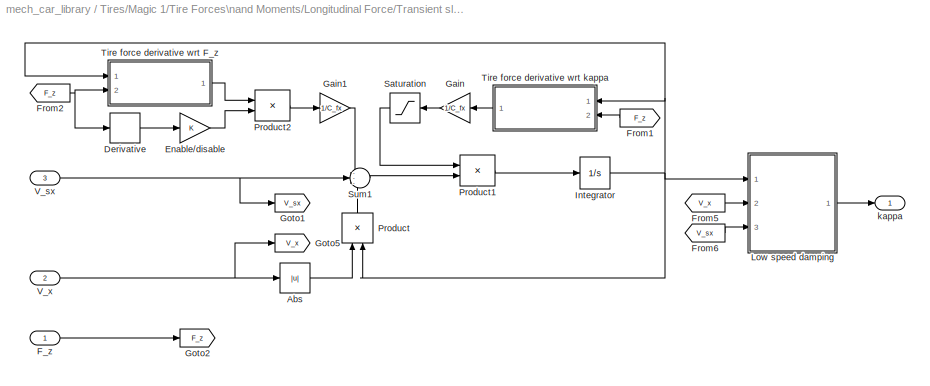
BLOCK [SubSystem] Tires/Magic 1/Tire Forces\nand Moments/Longitudinal Force/Transient slip
  FunctionWithSeparateData = off
  MaskHideContents = off
  MinAlgLoopOccurrences = off
  Opaque = off
  Ports = [3, 1]
  PropExecContextOutsideSubsystem = off
  RTWSystemCode = Auto
  RequestExecContextInheritance = off
BLOCK [Abs] Tires/Magic 1/Tire Forces\nand Moments/Longitudinal Force/Transient slip/Abs
  SaturateOnIntegerOverflow = off
  ZeroCross = off
BLOCK [Derivative] Tires/Magic 1/Tire Forces\nand Moments/Longitudinal Force/Transient slip/Derivative
BLOCK [Gain] Tires/Magic 1/Tire Forces\nand Moments/Longitudinal Force/Transient slip/Enable//disable
  OutDataType = sfix(16)
  OutScaling = 2^0
  ParameterDataType = sfix(16)
  ParameterScaling = 2^0
BLOCK [Inport] Tires/Magic 1/Tire Forces\nand Moments/Longitudinal Force/Transient slip/F_z
  IconDisplay = Port number
  OutDataType = sfix(16)
  OutScaling = 2^0
BLOCK [From] Tires/Magic 1/Tire Forces\nand Moments/Longitudinal Force/Transient slip/From1
  CloseFcn = tagdialog Close
  GotoTag = F_z
BLOCK [From] Tires/Magic 1/Tire Forces\nand Moments/Longitudinal Force/Transient slip/From2
  CloseFcn = tagdialog Close
  GotoTag = F_z
BLOCK [From] Tires/Magic 1/Tire Forces\nand Moments/Longitudinal Force/Transient slip/From5
  CloseFcn = tagdialog Close
  GotoTag = V_x
BLOCK [From] Tires/Magic 1/Tire Forces\nand Moments/Longitudinal Force/Transient slip/From6
  CloseFcn = tagdialog Close
  GotoTag = V_sx
BLOCK [Gain] Tires/Magic 1/Tire Forces\nand Moments/Longitudinal Force/Transient slip/Gain
  Gain = 1/C_fx
  OutDataType = sfix(16)
  OutScaling = 2^0
  ParameterDataType = sfix(16)
  ParameterScaling = 2^0
BLOCK [Gain] Tires/Magic 1/Tire Forces\nand Moments/Longitudinal Force/Transient slip/Gain1
  Gain = 1/C_fx
  OutDataType = sfix(16)
  OutScaling = 2^0
  ParameterDataType = sfix(16)
  ParameterScaling = 2^0
BLOCK [Goto] Tires/Magic 1/Tire Forces\nand Moments/Longitudinal Force/Transient slip/Goto1
  GotoTag = V_sx
  TagVisibility = local
BLOCK [Goto] Tires/Magic 1/Tire Forces\nand Moments/Longitudinal Force/Transient slip/Goto2
  GotoTag = F_z
  TagVisibility = local
BLOCK [Goto] Tires/Magic 1/Tire Forces\nand Moments/Longitudinal Force/Transient slip/Goto5
  GotoTag = V_x
  TagVisibility = local
BLOCK [Integrator] Tires/Magic 1/Tire Forces\nand Moments/Longitudinal Force/Transient slip/Integrator
  Ports = [1, 1]
  ZeroCross = off
BLOCK [SubSystem] Tires/Magic 1/Tire Forces\nand Moments/Longitudinal Force/Transient slip/Low speed damping
  FunctionWithSeparateData = off
  MaskHideContents = off
  MinAlgLoopOccurrences = off
  Opaque = off
  Ports = [3, 1]
  PropExecContextOutsideSubsystem = off
  RTWSystemCode = Auto
  RequestExecContextInheritance = off
BLOCK [Abs] Tires/Magic 1/Tire Forces\nand Moments/Longitudinal Force/Transient slip/Low speed damping/Abs
  SaturateOnIntegerOverflow = off
  ZeroCross = off
BLOCK [Constant] Tires/Magic 1/Tire Forces\nand Moments/Longitudinal Force/Transient slip/Low speed damping/Constant
  OutDataType = sfix(16)
  OutScaling = 2^0
  Value = V_low
BLOCK [DataTypeConversion] Tires/Magic 1/Tire Forces\nand Moments/Longitudinal Force/Transient slip/Low speed damping/Data Type Conversion
  OutDataType = sfix(16)
  OutScaling = 2^0
  SaturateOnIntegerOverflow = off
BLOCK [Fcn] Tires/Magic 1/Tire Forces\nand Moments/Longitudinal Force/Transient slip/Low speed damping/Fcn
  Expr = u+1
BLOCK [Gain] Tires/Magic 1/Tire Forces\nand Moments/Longitudinal Force/Transient slip/Low speed damping/Gain
  Gain = 1/C_fk
  OutDataType = sfix(16)
  OutDataTypeMode = Inherit via internal rule
  OutDataTypeStr = Inherit: Inherit via internal rule
  OutScaling = 2^0
  ParamDataTypeStr = Inherit: Inherit via internal rule
  ParameterDataType = sfix(16)
  ParameterDataTypeMode = Inherit via internal rule
  ParameterScaling = 2^0
  SaturateOnIntegerOverflow = off
BLOCK [Gain] Tires/Magic 1/Tire Forces\nand Moments/Longitudinal Force/Transient slip/Low speed damping/Gain1
  Gain = 1/V_low
  OutDataType = sfix(16)
  OutDataTypeMode = Inherit via internal rule
  OutDataTypeStr = Inherit: Inherit via internal rule
  OutScaling = 2^0
  ParamDataTypeStr = Inherit: Inherit via internal rule
  ParameterDataType = sfix(16)
  ParameterDataTypeMode = Inherit via internal rule
  ParameterScaling = 2^0
  SaturateOnIntegerOverflow = off
BLOCK [Gain] Tires/Magic 1/Tire Forces\nand Moments/Longitudinal Force/Transient slip/Low speed damping/Gain2
  Gain = pi
  OutDataType = sfix(16)
  OutDataTypeMode = Inherit via internal rule
  OutDataTypeStr = Inherit: Inherit via internal rule
  OutScaling = 2^0
  ParamDataTypeStr = Inherit: Inherit via internal rule
  ParameterDataType = sfix(16)
  ParameterDataTypeMode = Inherit via internal rule
  ParameterScaling = 2^0
  SaturateOnIntegerOverflow = off
BLOCK [Gain] Tires/Magic 1/Tire Forces\nand Moments/Longitudinal Force/Transient slip/Low speed damping/Gain3
  Gain = k_V_low0
  OutDataType = sfix(16)
  OutDataTypeMode = Inherit via internal rule
  OutDataTypeStr = Inherit: Inherit via internal rule
  OutScaling = 2^0
  ParamDataTypeStr = Inherit: Inherit via internal rule
  ParameterDataType = sfix(16)
  ParameterDataTypeMode = Inherit via internal rule
  ParameterScaling = 2^0
  SaturateOnIntegerOverflow = off
BLOCK [Gain] Tires/Magic 1/Tire Forces\nand Moments/Longitudinal Force/Transient slip/Low speed damping/Gain4
  Gain = 0.5
  OutDataType = sfix(16)
  OutDataTypeMode = Inherit via internal rule
  OutDataTypeStr = Inherit: Inherit via internal rule
  OutScaling = 2^0
  ParamDataTypeStr = Inherit: Inherit via internal rule
  ParameterDataType = sfix(16)
  ParameterDataTypeMode = Inherit via internal rule
  ParameterScaling = 2^0
  SaturateOnIntegerOverflow = off
BLOCK [Outport] Tires/Magic 1/Tire Forces\nand Moments/Longitudinal Force/Transient slip/Low speed damping/K
  IconDisplay = Port number
  OutDataType = sfix(16)
  OutScaling = 2^0
BLOCK [Inport] Tires/Magic 1/Tire Forces\nand Moments/Longitudinal Force/Transient slip/Low speed damping/K_undamped
  IconDisplay = Port number
  OutDataType = sfix(16)
  OutScaling = 2^0
BLOCK [Product] Tires/Magic 1/Tire Forces\nand Moments/Longitudinal Force/Transient slip/Low speed damping/Product
  InputSameDT = off
  Inputs = 3
  OutDataType = sfix(16)
  OutDataTypeMode = Inherit via internal rule
  OutDataTypeStr = Inherit: Inherit via internal rule
  OutScaling = 2^0
  Ports = [3, 1]
  SaturateOnIntegerOverflow = off
BLOCK [RelationalOperator] Tires/Magic 1/Tire Forces\nand Moments/Longitudinal Force/Transient slip/Low speed damping/Relational\nOperator
  InputSameDT = off
  LogicOutDataTypeMode = boolean
  Operator = >
  OutDataTypeStr = boolean
  ZeroCross = off
BLOCK [Sum] Tires/Magic 1/Tire Forces\nand Moments/Longitudinal Force/Transient slip/Low speed damping/Sum
  IconShape = round
  InputSameDT = off
  Inputs = |+-
  OutDataType = sfix(16)
  OutDataTypeMode = Inherit via internal rule
  OutDataTypeStr = Inherit: Inherit via internal rule
  OutScaling = 2^0
  Ports = [2, 1]
  SaturateOnIntegerOverflow = off
BLOCK [Trigonometry] Tires/Magic 1/Tire Forces\nand Moments/Longitudinal Force/Transient slip/Low speed damping/Trigonometric\nFunction
  Operator = cos
  Ports = [1, 1]
BLOCK [Inport] Tires/Magic 1/Tire Forces\nand Moments/Longitudinal Force/Transient slip/Low speed damping/V_sx
  IconDisplay = Port number
  OutDataType = sfix(16)
  OutScaling = 2^0
  Port = 3
BLOCK [Inport] Tires/Magic 1/Tire Forces\nand Moments/Longitudinal Force/Transient slip/Low speed damping/V_x
  IconDisplay = Port number
  OutDataType = sfix(16)
  OutScaling = 2^0
  Port = 2
BLOCK [Product] Tires/Magic 1/Tire Forces\nand Moments/Longitudinal Force/Transient slip/Product
  InputSameDT = off
  OutDataType = sfix(16)
  OutDataTypeMode = Inherit via internal rule
  OutDataTypeStr = Inherit: Inherit via internal rule
  OutScaling = 2^0
  Ports = [2, 1]
  SaturateOnIntegerOverflow = off
BLOCK [Product] Tires/Magic 1/Tire Forces\nand Moments/Longitudinal Force/Transient slip/Product1
  InputSameDT = off
  Inputs = /*
  OutDataType = sfix(16)
  OutDataTypeMode = Inherit via internal rule
  OutDataTypeStr = Inherit: Inherit via internal rule
  OutScaling = 2^0
  Ports = [2, 1]
  SaturateOnIntegerOverflow = off
BLOCK [Product] Tires/Magic 1/Tire Forces\nand Moments/Longitudinal Force/Transient slip/Product2
  InputSameDT = off
  OutDataType = sfix(16)
  OutDataTypeMode = Inherit via internal rule
  OutDataTypeStr = Inherit: Inherit via internal rule
  OutScaling = 2^0
  Ports = [2, 1]
  SaturateOnIntegerOverflow = off
BLOCK [Saturate] Tires/Magic 1/Tire Forces\nand Moments/Longitudinal Force/Transient slip/Saturation
  LowerLimit = sigma_min
  UpperLimit = Inf
  ZeroCross = off
BLOCK [Sum] Tires/Magic 1/Tire Forces\nand Moments/Longitudinal Force/Transient slip/Sum1
  IconShape = round
  InputSameDT = off
  Inputs = ---
  OutDataType = sfix(16)
  OutDataTypeMode = Inherit via internal rule
  OutDataTypeStr = Inherit: Inherit via internal rule
  OutScaling = 2^0
  Ports = [3, 1]
  SaturateOnIntegerOverflow = off
BLOCK [SubSystem] Tires/Magic 1/Tire Forces\nand Moments/Longitudinal Force/Transient slip/Tire force derivative wrt F_z
  FunctionWithSeparateData = off
  MaskHideContents = off
  MinAlgLoopOccurrences = off
  Opaque = off
  Ports = [2, 1]
  PropExecContextOutsideSubsystem = off
  RTWSystemCode = Auto
  RequestExecContextInheritance = off
BLOCK [Abs] Tires/Magic 1/Tire Forces\nand Moments/Longitudinal Force/Transient slip/Tire force derivative wrt F_z/Abs
  SaturateOnIntegerOverflow = off
  ZeroCross = off
BLOCK [Gain] Tires/Magic 1/Tire Forces\nand Moments/Longitudinal Force/Transient slip/Tire force derivative wrt F_z/F_x\nunscale
  Gain = F_x_sf
  OutDataType = sfix(16)
  OutDataTypeMode = Inherit via internal rule
  OutDataTypeStr = Inherit: Inherit via internal rule
  OutScaling = 2^0
  ParamDataTypeStr = Inherit: Inherit via internal rule
  ParameterDataType = sfix(16)
  ParameterDataTypeMode = Inherit via internal rule
  ParameterScaling = 2^0
  SaturateOnIntegerOverflow = off
BLOCK [Inport] Tires/Magic 1/Tire Forces\nand Moments/Longitudinal Force/Transient slip/Tire force derivative wrt F_z/F_z
  IconDisplay = Port number
  OutDataType = sfix(16)
  OutScaling = 2^0
  Port = 2
BLOCK [Gain] Tires/Magic 1/Tire Forces\nand Moments/Longitudinal Force/Transient slip/Tire force derivative wrt F_z/F_z\nscale
  Gain = 1/F_z_sf
  OutDataType = sfix(16)
  OutDataTypeMode = Inherit via internal rule
  OutDataTypeStr = Inherit: Inherit via internal rule
  OutScaling = 2^0
  ParamDataTypeStr = Inherit: Inherit via internal rule
  ParameterDataType = sfix(16)
  ParameterDataTypeMode = Inherit via internal rule
  ParameterScaling = 2^0
  SaturateOnIntegerOverflow = off
BLOCK [Product] Tires/Magic 1/Tire Forces\nand Moments/Longitudinal Force/Transient slip/Tire force derivative wrt F_z/Product
  InputSameDT = off
  OutDataType = sfix(16)
  OutDataTypeMode = Inherit via internal rule
  OutDataTypeStr = Inherit: Inherit via internal rule
  OutScaling = 2^0
  Ports = [2, 1]
  SaturateOnIntegerOverflow = off
BLOCK [Signum] Tires/Magic 1/Tire Forces\nand Moments/Longitudinal Force/Transient slip/Tire force derivative wrt F_z/Sign
  ZeroCross = off
BLOCK [Outport] Tires/Magic 1/Tire Forces\nand Moments/Longitudinal Force/Transient slip/Tire force derivative wrt F_z/dF_x//dF_z
  IconDisplay = Port number
  OutDataType = sfix(16)
  OutScaling = 2^0
BLOCK [Lookup2D] Tires/Magic 1/Tire Forces\nand Moments/Longitudinal Force/Transient slip/Tire force derivative wrt F_z/dF_x//dF_z\ntable
  ColumnIndex = F_z_bp
  InputSameDT = off
  LookUpMeth = Interpolation-Use End Values
  OutDataType = sfix(16)
  OutScaling = 2^0
  RowIndex = kappa_bp
  SaturateOnIntegerOverflow = off
  Table = dFx_dFz_grid'
BLOCK [Inport] Tires/Magic 1/Tire Forces\nand Moments/Longitudinal Force/Transient slip/Tire force derivative wrt F_z/kappa
  IconDisplay = Port number
  OutDataType = sfix(16)
  OutScaling = 2^0
BLOCK [Gain] Tires/Magic 1/Tire Forces\nand Moments/Longitudinal Force/Transient slip/Tire force derivative wrt F_z/kappa\nscale
  Gain = 1/kappa_sf
  OutDataType = sfix(16)
  OutDataTypeMode = Inherit via internal rule
  OutDataTypeStr = Inherit: Inherit via internal rule
  OutScaling = 2^0
  ParamDataTypeStr = Inherit: Inherit via internal rule
  ParameterDataType = sfix(16)
  ParameterDataTypeMode = Inherit via internal rule
  ParameterScaling = 2^0
  SaturateOnIntegerOverflow = off
BLOCK [SubSystem] Tires/Magic 1/Tire Forces\nand Moments/Longitudinal Force/Transient slip/Tire force derivative wrt kappa
  FunctionWithSeparateData = off
  MaskHideContents = off
  MinAlgLoopOccurrences = off
  Opaque = off
  Ports = [2, 1]
  PropExecContextOutsideSubsystem = off
  RTWSystemCode = Auto
  RequestExecContextInheritance = off
BLOCK [Abs] Tires/Magic 1/Tire Forces\nand Moments/Longitudinal Force/Transient slip/Tire force derivative wrt kappa/Abs
  SaturateOnIntegerOverflow = off
  ZeroCross = off
BLOCK [Gain] Tires/Magic 1/Tire Forces\nand Moments/Longitudinal Force/Transient slip/Tire force derivative wrt kappa/F_x\nunscale
  Gain = F_x_sf
  OutDataType = sfix(16)
  OutDataTypeMode = Inherit via internal rule
  OutDataTypeStr = Inherit: Inherit via internal rule
  OutScaling = 2^0
  ParamDataTypeStr = Inherit: Inherit via internal rule
  ParameterDataType = sfix(16)
  ParameterDataTypeMode = Inherit via internal rule
  ParameterScaling = 2^0
  SaturateOnIntegerOverflow = off
BLOCK [Inport] Tires/Magic 1/Tire Forces\nand Moments/Longitudinal Force/Transient slip/Tire force derivative wrt kappa/F_z
  IconDisplay = Port number
  OutDataType = sfix(16)
  OutScaling = 2^0
  Port = 2
BLOCK [Gain] Tires/Magic 1/Tire Forces\nand Moments/Longitudinal Force/Transient slip/Tire force derivative wrt kappa/F_z\nscale
  Gain = 1/F_z_sf
  OutDataType = sfix(16)
  OutDataTypeMode = Inherit via internal rule
  OutDataTypeStr = Inherit: Inherit via internal rule
  OutScaling = 2^0
  ParamDataTypeStr = Inherit: Inherit via internal rule
  ParameterDataType = sfix(16)
  ParameterDataTypeMode = Inherit via internal rule
  ParameterScaling = 2^0
  SaturateOnIntegerOverflow = off
BLOCK [Outport] Tires/Magic 1/Tire Forces\nand Moments/Longitudinal Force/Transient slip/Tire force derivative wrt kappa/dF_x//dkappa
  IconDisplay = Port number
  OutDataType = sfix(16)
  OutScaling = 2^0
BLOCK [Lookup2D] Tires/Magic 1/Tire Forces\nand Moments/Longitudinal Force/Transient slip/Tire force derivative wrt kappa/dF_x//dkappa\ntable
  ColumnIndex = F_z_bp
  InputSameDT = off
  LookUpMeth = Interpolation-Use End Values
  OutDataType = sfix(16)
  OutScaling = 2^0
  RowIndex = kappa_bp
  SaturateOnIntegerOverflow = off
  Table = dFx_dkappa_grid'
BLOCK [Inport] Tires/Magic 1/Tire Forces\nand Moments/Longitudinal Force/Transient slip/Tire force derivative wrt kappa/kappa
  IconDisplay = Port number
  OutDataType = sfix(16)
  OutScaling = 2^0
BLOCK [Gain] Tires/Magic 1/Tire Forces\nand Moments/Longitudinal Force/Transient slip/Tire force derivative wrt kappa/kappa\nscale
  Gain = 1/kappa_sf
  OutDataType = sfix(16)
  OutDataTypeMode = Inherit via internal rule
  OutDataTypeStr = Inherit: Inherit via internal rule
  OutScaling = 2^0
  ParamDataTypeStr = Inherit: Inherit via internal rule
  ParameterDataType = sfix(16)
  ParameterDataTypeMode = Inherit via internal rule
  ParameterScaling = 2^0
  SaturateOnIntegerOverflow = off
BLOCK [Inport] Tires/Magic 1/Tire Forces\nand Moments/Longitudinal Force/Transient slip/V_sx
  IconDisplay = Port number
  OutDataType = sfix(16)
  OutScaling = 2^0
  Port = 3
BLOCK [Inport] Tires/Magic 1/Tire Forces\nand Moments/Longitudinal Force/Transient slip/V_x
  IconDisplay = Port number
  OutDataType = sfix(16)
  OutScaling = 2^0
  Port = 2
BLOCK [Outport] Tires/Magic 1/Tire Forces\nand Moments/Longitudinal Force/Transient slip/kappa
  IconDisplay = Port number
  OutDataType = sfix(16)
  OutScaling = 2^0
BLOCK [Inport] Tires/Magic 1/Tire Forces\nand Moments/Longitudinal Force/Vc*x
  IconDisplay = Port number
  OutDataType = sfix(16)
  OutScaling = 2^0
  Port = 2
BLOCK [Inport] Tires/Magic 1/Tire Forces\nand Moments/Longitudinal Force/Vsx
  IconDisplay = Port number
  OutDataType = sfix(16)
  OutScaling = 2^0
BLOCK [SubSystem] Tires/Magic 1/Tire Forces\nand Moments/Longitudinal Slip
  FunctionWithSeparateData = off
  MaskHideContents = off
  MinAlgLoopOccurrences = off
  Opaque = off
  Ports = [3, 2]
  PropExecContextOutsideSubsystem = off
  RTWSystemCode = Auto
  RequestExecContextInheritance = off
BLOCK [Reference] Tires/Magic 1/Tire Forces\nand Moments/Longitudinal Slip/Dot Product  REF=simulink/Math\nOperations/Dot Product
  DoSatur = off
  InputSameDT = on
  LockScale = off
  OutDataType = sfix(16)
  OutDataTypeStr = Inherit: Inherit via internal rule
  OutScaling = 2^-10
  OutputDataTypeScalingMode = Inherit via internal rule
  Ports = [2, 1]
  RndMeth = Floor
  SourceBlock = simulink/Math\nOperations/Dot Product
  SourceType = Dot Product
BLOCK [Reference] Tires/Magic 1/Tire Forces\nand Moments/Longitudinal Slip/Dot Product1  REF=simulink/Math\nOperations/Dot Product
  DoSatur = off
  InputSameDT = on
  LockScale = off
  OutDataType = sfix(16)
  OutDataTypeStr = Inherit: Inherit via internal rule
  OutScaling = 2^-10
  OutputDataTypeScalingMode = Inherit via internal rule
  Ports = [2, 1]
  RndMeth = Floor
  SourceBlock = simulink/Math\nOperations/Dot Product
  SourceType = Dot Product
BLOCK [Inport] Tires/Magic 1/Tire Forces\nand Moments/Longitudinal Slip/Vc*
  IconDisplay = Port number
  OutDataType = sfix(16)
  OutScaling = 2^0
  Port = 2
BLOCK [Outport] Tires/Magic 1/Tire Forces\nand Moments/Longitudinal Slip/Vc*x
  IconDisplay = Port number
  OutDataType = sfix(16)
  OutScaling = 2^0
  Port = 2
BLOCK [Inport] Tires/Magic 1/Tire Forces\nand Moments/Longitudinal Slip/Vs
  IconDisplay = Port number
  OutDataType = sfix(16)
  OutScaling = 2^0
BLOCK [Outport] Tires/Magic 1/Tire Forces\nand Moments/Longitudinal Slip/Vsx
  IconDisplay = Port number
  OutDataType = sfix(16)
  OutScaling = 2^0
BLOCK [Inport] Tires/Magic 1/Tire Forces\nand Moments/Longitudinal Slip/l_
  IconDisplay = Port number
  OutDataType = sfix(16)
  OutScaling = 2^0
  Port = 3
BLOCK [Mux] Tires/Magic 1/Tire Forces\nand Moments/Mux
  DisplayOption = bar
  Inputs = 2
  Ports = [2, 1]
BLOCK [SubSystem] Tires/Magic 1/Tire Forces\nand Moments/Net Force, Moment
  FunctionWithSeparateData = off
  MaskHideContents = off
  MinAlgLoopOccurrences = off
  Opaque = off
  Ports = [8, 2]
  PropExecContextOutsideSubsystem = off
  RTWSystemCode = Auto
  RequestExecContextInheritance = off
BLOCK [SubSystem] Tires/Magic 1/Tire Forces\nand Moments/Net Force, Moment/Cross Product2
  FunctionWithSeparateData = off
  MaskHideContents = off
  MinAlgLoopOccurrences = off
  Opaque = off
  Ports = [2, 1]
  PropExecContextOutsideSubsystem = off
  RTWSystemCode = Auto
  RequestExecContextInheritance = off
BLOCK [Product] Tires/Magic 1/Tire Forces\nand Moments/Net Force, Moment/Cross Product2/Product
  InputSameDT = off
  OutDataType = sfix(16)
  OutDataTypeMode = Inherit via internal rule
  OutDataTypeStr = Inherit: Inherit via internal rule
  OutScaling = 2^0
  Ports = [2, 1]
  SaturateOnIntegerOverflow = off
BLOCK [Product] Tires/Magic 1/Tire Forces\nand Moments/Net Force, Moment/Cross Product2/Product1
  InputSameDT = off
  OutDataType = sfix(16)
  OutDataTypeMode = Inherit via internal rule
  OutDataTypeStr = Inherit: Inherit via internal rule
  OutScaling = 2^0
  Ports = [2, 1]
  SaturateOnIntegerOverflow = off
BLOCK [Selector] Tires/Magic 1/Tire Forces\nand Moments/Net Force, Moment/Cross Product2/Selector
  IndexOptions = Index vector (dialog)
  Indices = [2 3 1]
  InputPortWidth = 3
  OutputSizes = 1
  Ports = [1, 1]
BLOCK [Selector] Tires/Magic 1/Tire Forces\nand Moments/Net Force, Moment/Cross Product2/Selector1
  IndexOptions = Index vector (dialog)
  Indices = [3 1 2]
  InputPortWidth = 3
  OutputSizes = 1
  Ports = [1, 1]
BLOCK [Selector] Tires/Magic 1/Tire Forces\nand Moments/Net Force, Moment/Cross Product2/Selector2
  IndexOptions = Index vector (dialog)
  Indices = [3 1 2]
  InputPortWidth = 3
  OutputSizes = 1
  Ports = [1, 1]
BLOCK [Selector] Tires/Magic 1/Tire Forces\nand Moments/Net Force, Moment/Cross Product2/Selector3
  IndexOptions = Index vector (dialog)
  Indices = [2 3 1]
  InputPortWidth = 3
  OutputSizes = 1
  Ports = [1, 1]
BLOCK [Sum] Tires/Magic 1/Tire Forces\nand Moments/Net Force, Moment/Cross Product2/Sum
  IconShape = round
  InputSameDT = off
  Inputs = +|-
  OutDataType = sfix(16)
  OutDataTypeMode = Inherit via internal rule
  OutDataTypeStr = Inherit: Inherit via internal rule
  OutScaling = 2^0
  Ports = [2, 1]
  SaturateOnIntegerOverflow = off
BLOCK [Inport] Tires/Magic 1/Tire Forces\nand Moments/Net Force, Moment/Cross Product2/a
  IconDisplay = Port number
  OutDataType = sfix(16)
  OutScaling = 2^0
BLOCK [Outport] Tires/Magic 1/Tire Forces\nand Moments/Net Force, Moment/Cross Product2/a x b
  IconDisplay = Port number
  OutDataType = sfix(16)
  OutScaling = 2^0
BLOCK [Inport] Tires/Magic 1/Tire Forces\nand Moments/Net Force, Moment/Cross Product2/b
  IconDisplay = Port number
  OutDataType = sfix(16)
  OutScaling = 2^0
  Port = 2
BLOCK [Outport] Tires/Magic 1/Tire Forces\nand Moments/Net Force, Moment/F
  IconDisplay = Port number
  OutDataType = sfix(16)
  OutScaling = 2^0
  Port = 2
BLOCK [Inport] Tires/Magic 1/Tire Forces\nand Moments/Net Force, Moment/Fx
  IconDisplay = Port number
  OutDataType = sfix(16)
  OutScaling = 2^0
BLOCK [Inport] Tires/Magic 1/Tire Forces\nand Moments/Net Force, Moment/Fy
  IconDisplay = Port number
  OutDataType = sfix(16)
  OutScaling = 2^0
  Port = 2
BLOCK [Inport] Tires/Magic 1/Tire Forces\nand Moments/Net Force, Moment/Fz
  IconDisplay = Port number
  OutDataType = sfix(16)
  OutScaling = 2^0
  Port = 3
BLOCK [Outport] Tires/Magic 1/Tire Forces\nand Moments/Net Force, Moment/M
  IconDisplay = Port number
  OutDataType = sfix(16)
  OutScaling = 2^0
BLOCK [Product] Tires/Magic 1/Tire Forces\nand Moments/Net Force, Moment/Product1
  InputSameDT = off
  OutDataType = sfix(16)
  OutDataTypeMode = Inherit via internal rule
  OutDataTypeStr = Inherit: Inherit via internal rule
  OutScaling = 2^0
  Ports = [2, 1]
  SaturateOnIntegerOverflow = off
BLOCK [Product] Tires/Magic 1/Tire Forces\nand Moments/Net Force, Moment/Product2
  InputSameDT = off
  OutDataType = sfix(16)
  OutDataTypeMode = Inherit via internal rule
  OutDataTypeStr = Inherit: Inherit via internal rule
  OutScaling = 2^0
  Ports = [2, 1]
  SaturateOnIntegerOverflow = off
BLOCK [Product] Tires/Magic 1/Tire Forces\nand Moments/Net Force, Moment/Product3
  InputSameDT = off
  OutDataType = sfix(16)
  OutDataTypeMode = Inherit via internal rule
  OutDataTypeStr = Inherit: Inherit via internal rule
  OutScaling = 2^0
  Ports = [2, 1]
  SaturateOnIntegerOverflow = off
BLOCK [Product] Tires/Magic 1/Tire Forces\nand Moments/Net Force, Moment/Product4
  InputSameDT = off
  OutDataType = sfix(16)
  OutDataTypeMode = Inherit via internal rule
  OutDataTypeStr = Inherit: Inherit via internal rule
  OutScaling = 2^0
  Ports = [2, 1]
  SaturateOnIntegerOverflow = off
BLOCK [Sum] Tires/Magic 1/Tire Forces\nand Moments/Net Force, Moment/Sum
  InputSameDT = off
  Inputs = +++
  OutDataType = sfix(16)
  OutDataTypeMode = Inherit via internal rule
  OutDataTypeStr = Inherit: Inherit via internal rule
  OutScaling = 2^0
  Ports = [3, 1]
  SaturateOnIntegerOverflow = off
BLOCK [Inport] Tires/Magic 1/Tire Forces\nand Moments/Net Force, Moment/l_
  IconDisplay = Port number
  OutDataType = sfix(16)
  OutScaling = 2^0
  Port = 4
BLOCK [Inport] Tires/Magic 1/Tire Forces\nand Moments/Net Force, Moment/n_
  IconDisplay = Port number
  OutDataType = sfix(16)
  OutScaling = 2^0
  Port = 7
BLOCK [Inport] Tires/Magic 1/Tire Forces\nand Moments/Net Force, Moment/r
  IconDisplay = Port number
  OutDataType = sfix(16)
  OutScaling = 2^0
  Port = 8
BLOCK [Inport] Tires/Magic 1/Tire Forces\nand Moments/Net Force, Moment/r_
  IconDisplay = Port number
  OutDataType = sfix(16)
  OutScaling = 2^0
  Port = 5
BLOCK [Inport] Tires/Magic 1/Tire Forces\nand Moments/Net Force, Moment/t_
  IconDisplay = Port number
  OutDataType = sfix(16)
  OutScaling = 2^0
  Port = 6
BLOCK [PMIOPort] Tires/Magic 1/Tire Forces\nand Moments/S
  Port = 1
  Side = Left
BLOCK [Selector] Tires/Magic 1/Tire Forces\nand Moments/Selector1
  IndexOptions = Index vector (dialog)
  Indices = 1:3
  InputPortWidth = 18
  OutputSizes = 1
  Ports = [1, 1]
BLOCK [Selector] Tires/Magic 1/Tire Forces\nand Moments/Selector10
  IndexOptions = Index vector (dialog)
  Indices = 4:6
  InputPortWidth = 18
  OutputSizes = 1
  Ports = [1, 1]
BLOCK [Selector] Tires/Magic 1/Tire Forces\nand Moments/Selector6
  IndexOptions = Index vector (dialog)
  Indices = 10:18
  InputPortWidth = 18
  OutputSizes = 1
  Ports = [1, 1]
BLOCK [Selector] Tires/Magic 1/Tire Forces\nand Moments/Selector7
  IndexOptions = Index vector (dialog)
  Indices = 7:9
  InputPortWidth = 18
  OutputSizes = 1
  Ports = [1, 1]
BLOCK [Selector] Tires/Magic 1/Tire Forces\nand Moments/Selector8
  IndexOptions = Index vector (dialog)
  Indices = 7:9
  InputPortWidth = 18
  OutputSizes = 1
  Ports = [1, 1]
BLOCK [Selector] Tires/Magic 1/Tire Forces\nand Moments/Selector9
  IndexOptions = Index vector (dialog)
  Indices = 4:6
  InputPortWidth = 18
  OutputSizes = 1
  Ports = [1, 1]
BLOCK [SubSystem] Tires/Magic 1/Tire Forces\nand Moments/Side Slip
  FunctionWithSeparateData = off
  MaskHideContents = off
  MinAlgLoopOccurrences = off
  Opaque = off
  Ports = [4, 2]
  PropExecContextOutsideSubsystem = off
  RTWSystemCode = Auto
  RequestExecContextInheritance = off
BLOCK [Reference] Tires/Magic 1/Tire Forces\nand Moments/Side Slip/Dot Product  REF=simulink/Math\nOperations/Dot Product
  DoSatur = off
  InputSameDT = on
  LockScale = off
  OutDataType = sfix(16)
  OutDataTypeStr = Inherit: Inherit via internal rule
  OutScaling = 2^-10
  OutputDataTypeScalingMode = Inherit via internal rule
  Ports = [2, 1]
  RndMeth = Floor
  SourceBlock = simulink/Math\nOperations/Dot Product
  SourceType = Dot Product
BLOCK [Reference] Tires/Magic 1/Tire Forces\nand Moments/Side Slip/Dot Product1  REF=simulink/Math\nOperations/Dot Product
  DoSatur = off
  InputSameDT = on
  LockScale = off
  OutDataType = sfix(16)
  OutDataTypeStr = Inherit: Inherit via internal rule
  OutScaling = 2^-10
  OutputDataTypeScalingMode = Inherit via internal rule
  Ports = [2, 1]
  RndMeth = Floor
  SourceBlock = simulink/Math\nOperations/Dot Product
  SourceType = Dot Product
BLOCK [Inport] Tires/Magic 1/Tire Forces\nand Moments/Side Slip/Vc
  IconDisplay = Port number
  OutDataType = sfix(16)
  OutScaling = 2^0
BLOCK [Inport] Tires/Magic 1/Tire Forces\nand Moments/Side Slip/Vc*
  IconDisplay = Port number
  OutDataType = sfix(16)
  OutScaling = 2^0
  Port = 2
BLOCK [Outport] Tires/Magic 1/Tire Forces\nand Moments/Side Slip/Vc*x
  IconDisplay = Port number
  OutDataType = sfix(16)
  OutScaling = 2^0
  Port = 2
BLOCK [Outport] Tires/Magic 1/Tire Forces\nand Moments/Side Slip/Vcy
  IconDisplay = Port number
  OutDataType = sfix(16)
  OutScaling = 2^0
BLOCK [Inport] Tires/Magic 1/Tire Forces\nand Moments/Side Slip/l_
  IconDisplay = Port number
  OutDataType = sfix(16)
  OutScaling = 2^0
  Port = 3
BLOCK [Inport] Tires/Magic 1/Tire Forces\nand Moments/Side Slip/t_
  IconDisplay = Port number
  OutDataType = sfix(16)
  OutScaling = 2^0
  Port = 4
BLOCK [Stop] Tires/Magic 1/Tire Forces\nand Moments/Stop Simulation
BLOCK [SubSystem] Tires/Magic 1/Tire Forces\nand Moments/Unit Vectors
  FunctionWithSeparateData = off
  MaskHideContents = off
  MinAlgLoopOccurrences = off
  Opaque = off
  Ports = [2, 4]
  PropExecContextOutsideSubsystem = off
  RTWSystemCode = Auto
  RequestExecContextInheritance = off
BLOCK [Reference] Tires/Magic 1/Tire Forces\nand Moments/Unit Vectors/Cross Product  REF=mwlibrary/Utilities/Cross Product
  Ports = [2, 1]
  ShowPortLabels = on
  SourceBlock = mwlibrary/Utilities/Cross Product
  SourceType = Cross Product
BLOCK [Reference] Tires/Magic 1/Tire Forces\nand Moments/Unit Vectors/Cross Product1  REF=mwlibrary/Utilities/Cross Product
  Ports = [2, 1]
  ShowPortLabels = on
  SourceBlock = mwlibrary/Utilities/Cross Product
  SourceType = Cross Product
BLOCK [Reference] Tires/Magic 1/Tire Forces\nand Moments/Unit Vectors/Cross Product2  REF=mwlibrary/Utilities/Cross Product
  Ports = [2, 1]
  ShowPortLabels = on
  SourceBlock = mwlibrary/Utilities/Cross Product
  SourceType = Cross Product
BLOCK [Product] Tires/Magic 1/Tire Forces\nand Moments/Unit Vectors/Product1
  InputSameDT = off
  Multiplication = Matrix(*)
  OutDataType = sfix(16)
  OutDataTypeMode = Inherit via internal rule
  OutDataTypeStr = Inherit: Inherit via internal rule
  OutScaling = 2^0
  Ports = [2, 1]
  SaturateOnIntegerOverflow = off
BLOCK [Inport] Tires/Magic 1/Tire Forces\nand Moments/Unit Vectors/R
  IconDisplay = Port number
  OutDataType = sfix(16)
  OutScaling = 2^0
BLOCK [Reshape] Tires/Magic 1/Tire Forces\nand Moments/Unit Vectors/Reshape
  OutputDimensionality = Customize
  OutputDimensions = [3,3]
BLOCK [Reference] Tires/Magic 1/Tire Forces\nand Moments/Unit Vectors/Unit Vector  REF=mwlibrary/Utilities/Unit Vector
  Ports = [1, 1]
  ShowPortLabels = on
  SourceBlock = mwlibrary/Utilities/Unit Vector
  SourceType = Unit Vector
BLOCK [Reference] Tires/Magic 1/Tire Forces\nand Moments/Unit Vectors/Unit Vector1  REF=mwlibrary/Utilities/Unit Vector
  Ports = [1, 1]
  ShowPortLabels = on
  SourceBlock = mwlibrary/Utilities/Unit Vector
  SourceType = Unit Vector
BLOCK [Reference] Tires/Magic 1/Tire Forces\nand Moments/Unit Vectors/Unit Vector2  REF=mwlibrary/Utilities/Unit Vector
  Ports = [1, 1]
  ShowPortLabels = on
  SourceBlock = mwlibrary/Utilities/Unit Vector
  SourceType = Unit Vector
BLOCK [Reference] Tires/Magic 1/Tire Forces\nand Moments/Unit Vectors/Unit Vector3  REF=mwlibrary/Utilities/Unit Vector
  Ports = [1, 1]
  ShowPortLabels = on
  SourceBlock = mwlibrary/Utilities/Unit Vector
  SourceType = Unit Vector
BLOCK [Constant] Tires/Magic 1/Tire Forces\nand Moments/Unit Vectors/j
  OutDataType = sfix(16)
  OutScaling = 2^0
  Value = [0;1;0]
BLOCK [Outport] Tires/Magic 1/Tire Forces\nand Moments/Unit Vectors/l_
  IconDisplay = Port number
  OutDataType = sfix(16)
  OutScaling = 2^0
BLOCK [Inport] Tires/Magic 1/Tire Forces\nand Moments/Unit Vectors/n_
  IconDisplay = Port number
  OutDataType = sfix(16)
  OutScaling = 2^0
  Port = 2
BLOCK [Outport] Tires/Magic 1/Tire Forces\nand Moments/Unit Vectors/r_
  IconDisplay = Port number
  OutDataType = sfix(16)
  OutScaling = 2^0
  Port = 4
BLOCK [Outport] Tires/Magic 1/Tire Forces\nand Moments/Unit Vectors/s_
  IconDisplay = Port number
  OutDataType = sfix(16)
  OutScaling = 2^0
  Port = 2
BLOCK [Outport] Tires/Magic 1/Tire Forces\nand Moments/Unit Vectors/t_
  IconDisplay = Port number
  OutDataType = sfix(16)
  OutScaling = 2^0
  Port = 3
BLOCK [SubSystem] Tires/Magic 1/Tire Forces\nand Moments/Vc, Vc*
  FunctionWithSeparateData = off
  MaskHideContents = off
  MinAlgLoopOccurrences = off
  Opaque = off
  Ports = [5, 2]
  PropExecContextOutsideSubsystem = off
  RTWSystemCode = Auto
  RequestExecContextInheritance = off
BLOCK [Reference] Tires/Magic 1/Tire Forces\nand Moments/Vc, Vc*/Cross Product1  REF=mwlibrary/Utilities/Cross Product
  Ports = [2, 1]
  ShowPortLabels = on
  SourceBlock = mwlibrary/Utilities/Cross Product
  SourceType = Cross Product
BLOCK [Reference] Tires/Magic 1/Tire Forces\nand Moments/Vc, Vc*/Cross Product2  REF=mwlibrary/Utilities/Cross Product
  Ports = [2, 1]
  ShowPortLabels = on
  SourceBlock = mwlibrary/Utilities/Cross Product
  SourceType = Cross Product
BLOCK [Product] Tires/Magic 1/Tire Forces\nand Moments/Vc, Vc*/Product
  InputSameDT = off
  OutDataType = sfix(16)
  OutDataTypeMode = Inherit via internal rule
  OutDataTypeStr = Inherit: Inherit via internal rule
  OutScaling = 2^0
  Ports = [2, 1]
  SaturateOnIntegerOverflow = off
BLOCK [Product] Tires/Magic 1/Tire Forces\nand Moments/Vc, Vc*/Product1
  InputSameDT = off
  OutDataType = sfix(16)
  OutDataTypeMode = Inherit via internal rule
  OutDataTypeStr = Inherit: Inherit via internal rule
  OutScaling = 2^0
  Ports = [2, 1]
  SaturateOnIntegerOverflow = off
BLOCK [Sum] Tires/Magic 1/Tire Forces\nand Moments/Vc, Vc*/Sum1
  IconShape = round
  InputSameDT = off
  Inputs = ++|
  OutDataType = sfix(16)
  OutDataTypeMode = Inherit via internal rule
  OutDataTypeStr = Inherit: Inherit via internal rule
  OutScaling = 2^0
  Ports = [2, 1]
  SaturateOnIntegerOverflow = off
BLOCK [Sum] Tires/Magic 1/Tire Forces\nand Moments/Vc, Vc*/Sum2
  IconShape = round
  InputSameDT = off
  Inputs = ++|
  OutDataType = sfix(16)
  OutDataTypeMode = Inherit via internal rule
  OutDataTypeStr = Inherit: Inherit via internal rule
  OutScaling = 2^0
  Ports = [2, 1]
  SaturateOnIntegerOverflow = off
BLOCK [Inport] Tires/Magic 1/Tire Forces\nand Moments/Vc, Vc*/V
  IconDisplay = Port number
  OutDataType = sfix(16)
  OutScaling = 2^0
BLOCK [Outport] Tires/Magic 1/Tire Forces\nand Moments/Vc, Vc*/Vc
  IconDisplay = Port number
  OutDataType = sfix(16)
  OutScaling = 2^0
BLOCK [Outport] Tires/Magic 1/Tire Forces\nand Moments/Vc, Vc*/Vc*
  IconDisplay = Port number
  OutDataType = sfix(16)
  OutScaling = 2^0
  Port = 2
BLOCK [Inport] Tires/Magic 1/Tire Forces\nand Moments/Vc, Vc*/r
  IconDisplay = Port number
  OutDataType = sfix(16)
  OutScaling = 2^0
  Port = 4
BLOCK [Inport] Tires/Magic 1/Tire Forces\nand Moments/Vc, Vc*/r_
  IconDisplay = Port number
  OutDataType = sfix(16)
  OutScaling = 2^0
  Port = 3
BLOCK [Inport] Tires/Magic 1/Tire Forces\nand Moments/Vc, Vc*/re
  IconDisplay = Port number
  OutDataType = sfix(16)
  OutScaling = 2^0
  Port = 5
BLOCK [Inport] Tires/Magic 1/Tire Forces\nand Moments/Vc, Vc*/w
  IconDisplay = Port number
  OutDataType = sfix(16)
  OutScaling = 2^0
  Port = 2
BLOCK [SubSystem] Tires/Magic 1/Tire Forces\nand Moments/Vertical Load
  FunctionWithSeparateData = off
  MaskHideContents = off
  MinAlgLoopOccurrences = off
  Opaque = off
  Ports = [2, 1]
  PropExecContextOutsideSubsystem = off
  RTWSystemCode = Auto
  RequestExecContextInheritance = off
BLOCK [Outport] Tires/Magic 1/Tire Forces\nand Moments/Vertical Load/Fz
  IconDisplay = Port number
  OutDataType = sfix(16)
  OutScaling = 2^0
BLOCK [Gain] Tires/Magic 1/Tire Forces\nand Moments/Vertical Load/Gain
  Gain = kt
  OutDataType = sfix(16)
  OutDataTypeMode = Inherit via internal rule
  OutDataTypeStr = Inherit: Inherit via internal rule
  OutScaling = 2^0
  ParamDataTypeStr = Inherit: Inherit via internal rule
  ParameterDataType = sfix(16)
  ParameterDataTypeMode = Inherit via internal rule
  ParameterScaling = 2^0
  SaturateOnIntegerOverflow = off
BLOCK [Saturate] Tires/Magic 1/Tire Forces\nand Moments/Vertical Load/Saturation
  LowerLimit = 0
  UpperLimit = Inf
  ZeroCross = off
BLOCK [Sum] Tires/Magic 1/Tire Forces\nand Moments/Vertical Load/Sum
  IconShape = round
  InputSameDT = off
  Inputs = |-+
  OutDataType = sfix(16)
  OutDataTypeMode = Inherit via internal rule
  OutDataTypeStr = Inherit: Inherit via internal rule
  OutScaling = 2^0
  Ports = [2, 1]
  SaturateOnIntegerOverflow = off
BLOCK [Inport] Tires/Magic 1/Tire Forces\nand Moments/Vertical Load/r
  IconDisplay = Port number
  OutDataType = sfix(16)
  OutScaling = 2^0
BLOCK [Inport] Tires/Magic 1/Tire Forces\nand Moments/Vertical Load/rf
  IconDisplay = Port number
  OutDataType = sfix(16)
  OutScaling = 2^0
  Port = 2
BLOCK [SubSystem] Tires/Magic 1/Tire Forces\nand Moments/Vs
  FunctionWithSeparateData = off
  MaskHideContents = off
  MinAlgLoopOccurrences = off
  Opaque = off
  Ports = [6, 1]
  PropExecContextOutsideSubsystem = off
  RTWSystemCode = Auto
  RequestExecContextInheritance = off
BLOCK [Reference] Tires/Magic 1/Tire Forces\nand Moments/Vs/Cross Product1  REF=mwlibrary/Utilities/Cross Product
  Ports = [2, 1]
  ShowPortLabels = on
  SourceBlock = mwlibrary/Utilities/Cross Product
  SourceType = Cross Product
BLOCK [Product] Tires/Magic 1/Tire Forces\nand Moments/Vs/Product
  InputSameDT = off
  OutDataType = sfix(16)
  OutDataTypeMode = Inherit via internal rule
  OutDataTypeStr = Inherit: Inherit via internal rule
  OutScaling = 2^0
  Ports = [2, 1]
  SaturateOnIntegerOverflow = off
BLOCK [Product] Tires/Magic 1/Tire Forces\nand Moments/Vs/Product1
  InputSameDT = off
  OutDataType = sfix(16)
  OutDataTypeMode = Inherit via internal rule
  OutDataTypeStr = Inherit: Inherit via internal rule
  OutScaling = 2^0
  Ports = [2, 1]
  SaturateOnIntegerOverflow = off
BLOCK [Sum] Tires/Magic 1/Tire Forces\nand Moments/Vs/Sum
  IconShape = round
  InputSameDT = off
  Inputs = |++
  OutDataType = sfix(16)
  OutDataTypeMode = Inherit via internal rule
  OutDataTypeStr = Inherit: Inherit via internal rule
  OutScaling = 2^0
  Ports = [2, 1]
  SaturateOnIntegerOverflow = off
BLOCK [Sum] Tires/Magic 1/Tire Forces\nand Moments/Vs/Sum1
  IconShape = round
  InputSameDT = off
  Inputs = ++|
  OutDataType = sfix(16)
  OutDataTypeMode = Inherit via internal rule
  OutDataTypeStr = Inherit: Inherit via internal rule
  OutScaling = 2^0
  Ports = [2, 1]
  SaturateOnIntegerOverflow = off
BLOCK [Inport] Tires/Magic 1/Tire Forces\nand Moments/Vs/V
  IconDisplay = Port number
  OutDataType = sfix(16)
  OutScaling = 2^0
BLOCK [Outport] Tires/Magic 1/Tire Forces\nand Moments/Vs/Vs
  IconDisplay = Port number
  OutDataType = sfix(16)
  OutScaling = 2^0
BLOCK [Inport] Tires/Magic 1/Tire Forces\nand Moments/Vs/omega
  IconDisplay = Port number
  OutDataType = sfix(16)
  OutScaling = 2^0
  Port = 3
BLOCK [Inport] Tires/Magic 1/Tire Forces\nand Moments/Vs/r_
  IconDisplay = Port number
  OutDataType = sfix(16)
  OutScaling = 2^0
  Port = 4
BLOCK [Inport] Tires/Magic 1/Tire Forces\nand Moments/Vs/re
  IconDisplay = Port number
  OutDataType = sfix(16)
  OutScaling = 2^0
  Port = 6
BLOCK [Inport] Tires/Magic 1/Tire Forces\nand Moments/Vs/s_
  IconDisplay = Port number
  OutDataType = sfix(16)
  OutScaling = 2^0
  Port = 5
BLOCK [Inport] Tires/Magic 1/Tire Forces\nand Moments/Vs/w
  IconDisplay = Port number
  OutDataType = sfix(16)
  OutScaling = 2^0
  Port = 2
BLOCK [PMIOPort] Tires/Magic 1/Tire Forces\nand Moments/W
  Port = 3
  Side = Right
BLOCK [Gain] Tires/Magic 1/Tire Forces\nand Moments/rad2deg
  Gain = 180/pi
  OutDataType = sfix(16)
  OutDataTypeMode = Inherit via internal rule
  OutDataTypeStr = Inherit: Inherit via internal rule
  OutScaling = 2^0
  ParamDataTypeStr = Inherit: Inherit via internal rule
  ParameterDataType = sfix(16)
  ParameterDataTypeMode = Inherit via internal rule
  ParameterScaling = 2^0
  SaturateOnIntegerOverflow = off
BLOCK [Reference] Tires/Magic 1/Wheel  REF=mblibv1/Bodies/Body
  AttachedToCS = 1
  BodyColor = [0.5 0.5 0.5]
  CG = Left$CG$[0 0 0]$CS1$CS1$m$[0 0 0]$Euler X-Y-Z$deg$WORLD$false
  CGPos = [0 0 0]
  CGRot = [0 0 0]
  CS0Pos = []
  CS0Rot = []
  CS10Pos = []
  CS10Rot = []
  CS11Pos = []
  CS11Rot = []
  CS12Pos = []
  CS12Rot = []
  CS13Pos = []
  CS13Rot = []
  CS14Pos = []
  CS14Rot = []
  CS15Pos = []
  CS15Rot = []
  CS16Pos = []
  CS16Rot = []
  CS17Pos = []
  CS17Rot = []
  CS18Pos = []
  CS18Rot = []
  CS19Pos = []
  CS19Rot = []
  CS1Pos = [0 0 0]
  CS1Rot = [0 0 0]
  CS20Pos = []
  CS20Rot = []
  CS2Pos = [0 0 0]
  CS2Rot = [0 0 0]
  CS3Pos = []
  CS3Rot = []
  CS4Pos = []
  CS4Rot = []
  CS5Pos = []
  CS5Rot = []
  CS6Pos = []
  CS6Rot = []
  CS7Pos = []
  CS7Rot = []
  CS8Pos = []
  CS8Rot = []
  CS9Pos = []
  CS9Rot = []
  ClassName = Body
  Density = 1
  DensityUnits = kg/m^3
  DensityUse = false
  DialogClass = MechanicalBodyBlock
  DialogController = MECH.DynMechDlgSource
  GraphicsMode = 1
  GraphicsObj = []
  Inertia = m_w*r_e^2*diag([0.25,0.5,0.25])
  InertiaUnits = kg*m^2
  LConnTagsString = CS1
  LeftPortType = workingframe
  Mass = m_w
  MassUnits = kg
  PhysicalDomain = mechanical
  Ports = [0, 0, 0, 0, 0, 1, 1]
  RConnTagsString = CS2
  RightPortType = workingframe
  Shape = Cylinder
  ShapeDims = [1 1]
  ShapeUnits = m
  ShapeUse = false
  SourceBlock = mblibv1/Bodies/Body
  SourceType = Body
  SubClassName = Unknown
  WorkingFrames = Left$CS1$[0 0 0]$ADJOINING$ADJOINING$m$[0 0 0]$Euler X-Y-Z$deg$WORLD$true#Right$CS2$[0 0 0]$CG$CG$m$[0 0 0]$Euler X-Y-Z$deg$WORLD$true#Right$CS3$[0 0 r_e]$CG$CG$m$[0 0 0]$Euler X-Y-Z$deg$WORLD$false#Right$CS4$[0 0 -r_e]$CG$CG$m$[0 0 0]$Euler X-Y-Z$deg$WORLD$false
BLOCK [Inport] Tires/Magic 1/delta
  IconDisplay = Port number
  OutDataType = sfix(16)
  OutScaling = 2^0
BLOCK [SubSystem] Utilities
  FunctionWithSeparateData = off
  MaskHideContents = off
  MinAlgLoopOccurrences = off
  Opaque = off
  Ports = []
  PropExecContextOutsideSubsystem = off
  RTWSystemCode = Auto
  RequestExecContextInheritance = off
BLOCK [SubSystem] Utilities/Cross Product
  FunctionWithSeparateData = off
  MaskDescription = Calculate the cross product of two 3x1 vectors.
  MaskHideContents = off
  MaskIconFrame = on
  MaskIconOpaque = on
  MaskIconRotate = none
  MaskIconUnits = autoscale
  MaskType = Cross Product
  MinAlgLoopOccurrences = off
  Opaque = off
  Ports = [2, 1]
  PropExecContextOutsideSubsystem = off
  RTWSystemCode = Auto
  RequestExecContextInheritance = off
BLOCK [Product] Utilities/Cross Product/Product
  InputSameDT = off
  OutDataType = sfix(16)
  OutDataTypeMode = Inherit via internal rule
  OutDataTypeStr = Inherit: Inherit via internal rule
  OutScaling = 2^0
  Ports = [2, 1]
  SaturateOnIntegerOverflow = off
BLOCK [Product] Utilities/Cross Product/Product1
  InputSameDT = off
  OutDataType = sfix(16)
  OutDataTypeMode = Inherit via internal rule
  OutDataTypeStr = Inherit: Inherit via internal rule
  OutScaling = 2^0
  Ports = [2, 1]
  SaturateOnIntegerOverflow = off
BLOCK [Selector] Utilities/Cross Product/Selector
  IndexOptions = Index vector (dialog)
  Indices = [2 3 1]
  InputPortWidth = 3
  OutputSizes = 1
  Ports = [1, 1]
BLOCK [Selector] Utilities/Cross Product/Selector1
  IndexOptions = Index vector (dialog)
  Indices = [3 1 2]
  InputPortWidth = 3
  OutputSizes = 1
  Ports = [1, 1]
BLOCK [Selector] Utilities/Cross Product/Selector2
  IndexOptions = Index vector (dialog)
  Indices = [3 1 2]
  InputPortWidth = 3
  OutputSizes = 1
  Ports = [1, 1]
BLOCK [Selector] Utilities/Cross Product/Selector3
  IndexOptions = Index vector (dialog)
  Indices = [2 3 1]
  InputPortWidth = 3
  OutputSizes = 1
  Ports = [1, 1]
BLOCK [Sum] Utilities/Cross Product/Sum
  IconShape = round
  InputSameDT = off
  Inputs = +|-
  OutDataType = sfix(16)
  OutDataTypeMode = Inherit via internal rule
  OutDataTypeStr = Inherit: Inherit via internal rule
  OutScaling = 2^0
  Ports = [2, 1]
  SaturateOnIntegerOverflow = off
BLOCK [Inport] Utilities/Cross Product/a
  IconDisplay = Port number
  OutDataType = sfix(16)
  OutScaling = 2^0
  PortDimensions = 3
BLOCK [Outport] Utilities/Cross Product/a x b
  IconDisplay = Port number
  OutDataType = sfix(16)
  OutScaling = 2^0
BLOCK [Inport] Utilities/Cross Product/b
  IconDisplay = Port number
  OutDataType = sfix(16)
  OutScaling = 2^0
  Port = 2
  PortDimensions = 3
BLOCK [SubSystem] Utilities/Unit Vector
  FunctionWithSeparateData = off
  MaskDescription = Normalize a 3x1 vector.
  MaskHideContents = off
  MaskIconFrame = on
  MaskIconOpaque = on
  MaskIconRotate = none
  MaskIconUnits = autoscale
  MaskType = Unit Vector
  MinAlgLoopOccurrences = off
  Opaque = off
  Ports = [1, 1]
  PropExecContextOutsideSubsystem = off
  RTWSystemCode = Auto
  RequestExecContextInheritance = off
BLOCK [Assertion] Utilities/Unit Vector/Assertion
  AssertionFailFcn = error('Magnitude of input is zero.')
  Enabled = on
BLOCK [Fcn] Utilities/Unit Vector/Normalize l
  Expr = sqrt(u[1]^2+u[2]^2+u[3]^2)
BLOCK [Product] Utilities/Unit Vector/Product
  InputSameDT = off
  Inputs = /*
  OutDataType = sfix(16)
  OutDataTypeMode = Inherit via internal rule
  OutDataTypeStr = Inherit: Inherit via internal rule
  OutScaling = 2^0
  Ports = [2, 1]
  SaturateOnIntegerOverflow = off
BLOCK [Inport] Utilities/Unit Vector/u
  IconDisplay = Port number
  OutDataType = sfix(16)
  OutScaling = 2^0
  PortDimensions = 3
BLOCK [Outport] Utilities/Unit Vector/u//|u|
  IconDisplay = Port number
  OutDataType = sfix(16)
  OutScaling = 2^0
ANNOTATION Tires/Magic 1/Tire Forces\nand Moments/Lateral Force/Tire force: Magic Formula (load dependent)
ANNOTATION Tires/Magic 1/Tire Forces\nand Moments/Longitudinal Force/Tire force: Magic Formula (load dependent)
ANNOTATION Tires/Magic 1/Tire Forces\nand Moments/Longitudinal Force/Transient slip/Tire force derivative wrt F_z: Numerical differentiation of the Magic Formula
ANNOTATION Tires/Magic 1/Tire Forces\nand Moments/Longitudinal Force/Transient slip/Tire force derivative wrt kappa: Numerical differentiation of the Magic Formula
ANNOTATION Tires/Magic 1/Tire Forces\nand Moments/Unit Vectors: This subsystem computes unit vectors of interest for tire modelling.\n* l is in the heading direction.\n* r is in the direction from the wheel center to the contact patch.\n* s is in the wheel spin direction (right hand rule).\n* t is the projection of s onto the ground plane.
LINE Tires/Magic 1/Derivative1:1 -> Tires/Magic 1/Mux:3
NET Tires/Magic 1/Derivative:1 -> Tires/Magic 1/Derivative1:1, Tires/Magic 1/Mux:2
LINE Tires/Magic 1/Mux:1 -> Tires/Magic 1/Joint Actuator1:1
LINE Tires/Magic 1/T:1 -> Tires/Magic 1/Joint Actuator:1
NET Tires/Magic 1/Tire Forces\nand Moments/Body Sensor:1 -> Tires/Magic 1/Tire Forces\nand Moments/Selector10:1, Tires/Magic 1/Tire Forces\nand Moments/Selector1:1, Tires/Magic 1/Tire Forces\nand Moments/Selector6:1, Tires/Magic 1/Tire Forces\nand Moments/Selector7:1, Tires/Magic 1/Tire Forces\nand Moments/Selector8:1, Tires/Magic 1/Tire Forces\nand Moments/Selector9:1
LINE Tires/Magic 1/Tire Forces\nand Moments/Camber/Dot Product1:1 -> Tires/Magic 1/Tire Forces\nand Moments/Camber/Trigonometric\nFunction:1
LINE Tires/Magic 1/Tire Forces\nand Moments/Camber/Trigonometric\nFunction:1 -> Tires/Magic 1/Tire Forces\nand Moments/Camber/gamma:1
LINE Tires/Magic 1/Tire Forces\nand Moments/Camber/n_:1 -> Tires/Magic 1/Tire Forces\nand Moments/Camber/Dot Product1:2
LINE Tires/Magic 1/Tire Forces\nand Moments/Camber/s_:1 -> Tires/Magic 1/Tire Forces\nand Moments/Camber/Dot Product1:1
NET Tires/Magic 1/Tire Forces\nand Moments/Camber:1 -> Tires/Magic 1/Tire Forces\nand Moments/Goto5:1, Tires/Magic 1/Tire Forces\nand Moments/rad2deg:1
LINE Tires/Magic 1/Tire Forces\nand Moments/Constant1:1 -> Tires/Magic 1/Tire Forces\nand Moments/Vs:6
LINE Tires/Magic 1/Tire Forces\nand Moments/Constant2:1 -> Tires/Magic 1/Tire Forces\nand Moments/Vertical Load:2
LINE Tires/Magic 1/Tire Forces\nand Moments/Constant4:1 -> Tires/Magic 1/Tire Forces\nand Moments/Goto13:1
LINE Tires/Magic 1/Tire Forces\nand Moments/Constant5:1 -> Tires/Magic 1/Tire Forces\nand Moments/Vc, Vc*:5
LINE Tires/Magic 1/Tire Forces\nand Moments/Contact Patch/Abs:1 -> Tires/Magic 1/Tire Forces\nand Moments/Contact Patch/r:1
LINE Tires/Magic 1/Tire Forces\nand Moments/Contact Patch/Product2:1 -> Tires/Magic 1/Tire Forces\nand Moments/Contact Patch/Abs:1
LINE Tires/Magic 1/Tire Forces\nand Moments/Contact Patch/Selector:1 -> Tires/Magic 1/Tire Forces\nand Moments/Contact Patch/Product2:1
LINE Tires/Magic 1/Tire Forces\nand Moments/Contact Patch/Trigonometric\nFunction:1 -> Tires/Magic 1/Tire Forces\nand Moments/Contact Patch/Product2:2
LINE Tires/Magic 1/Tire Forces\nand Moments/Contact Patch/gamma:1 -> Tires/Magic 1/Tire Forces\nand Moments/Contact Patch/Trigonometric\nFunction:1
LINE Tires/Magic 1/Tire Forces\nand Moments/Contact Patch/p:1 -> Tires/Magic 1/Tire Forces\nand Moments/Contact Patch/Selector:1
LINE Tires/Magic 1/Tire Forces\nand Moments/Contact Patch:1 -> Tires/Magic 1/Tire Forces\nand Moments/Goto4:1
LINE Tires/Magic 1/Tire Forces\nand Moments/Dead Zone:1 -> Tires/Magic 1/Tire Forces\nand Moments/Stop Simulation:1
LINE Tires/Magic 1/Tire Forces\nand Moments/From12:1 -> Tires/Magic 1/Tire Forces\nand Moments/Vc, Vc*:4
LINE Tires/Magic 1/Tire Forces\nand Moments/From13:1 -> Tires/Magic 1/Tire Forces\nand Moments/Contact Patch:2
LINE Tires/Magic 1/Tire Forces\nand Moments/From14:1 -> Tires/Magic 1/Tire Forces\nand Moments/Vertical Load:1
LINE Tires/Magic 1/Tire Forces\nand Moments/From15:1 -> Tires/Magic 1/Tire Forces\nand Moments/Lateral Force:3
LINE Tires/Magic 1/Tire Forces\nand Moments/From16:1 -> Tires/Magic 1/Tire Forces\nand Moments/Longitudinal Force:3
LINE Tires/Magic 1/Tire Forces\nand Moments/From17:1 -> Tires/Magic 1/Tire Forces\nand Moments/Net Force, Moment:1
LINE Tires/Magic 1/Tire Forces\nand Moments/From18:1 -> Tires/Magic 1/Tire Forces\nand Moments/Vs:4
LINE Tires/Magic 1/Tire Forces\nand Moments/From19:1 -> Tires/Magic 1/Tire Forces\nand Moments/Vc, Vc*:3
LINE Tires/Magic 1/Tire Forces\nand Moments/From1:1 -> Tires/Magic 1/Tire Forces\nand Moments/Side Slip:4
LINE Tires/Magic 1/Tire Forces\nand Moments/From20:1 -> Tires/Magic 1/Tire Forces\nand Moments/Vs:5
LINE Tires/Magic 1/Tire Forces\nand Moments/From21:1 -> Tires/Magic 1/Tire Forces\nand Moments/Vs:3
LINE Tires/Magic 1/Tire Forces\nand Moments/From22:1 -> Tires/Magic 1/Tire Forces\nand Moments/Unit Vectors:2
LINE Tires/Magic 1/Tire Forces\nand Moments/From23:1 -> Tires/Magic 1/Tire Forces\nand Moments/Camber:1
LINE Tires/Magic 1/Tire Forces\nand Moments/From24:1 -> Tires/Magic 1/Tire Forces\nand Moments/Camber:2
LINE Tires/Magic 1/Tire Forces\nand Moments/From25:1 -> Tires/Magic 1/Tire Forces\nand Moments/Net Force, Moment:2
LINE Tires/Magic 1/Tire Forces\nand Moments/From26:1 -> Tires/Magic 1/Tire Forces\nand Moments/Net Force, Moment:3
LINE Tires/Magic 1/Tire Forces\nand Moments/From27:1 -> Tires/Magic 1/Tire Forces\nand Moments/Net Force, Moment:4
LINE Tires/Magic 1/Tire Forces\nand Moments/From28:1 -> Tires/Magic 1/Tire Forces\nand Moments/Net Force, Moment:5
LINE Tires/Magic 1/Tire Forces\nand Moments/From29:1 -> Tires/Magic 1/Tire Forces\nand Moments/Net Force, Moment:6
LINE Tires/Magic 1/Tire Forces\nand Moments/From2:1 -> Tires/Magic 1/Tire Forces\nand Moments/Longitudinal Slip:2
LINE Tires/Magic 1/Tire Forces\nand Moments/From30:1 -> Tires/Magic 1/Tire Forces\nand Moments/Net Force, Moment:7
LINE Tires/Magic 1/Tire Forces\nand Moments/From31:1 -> Tires/Magic 1/Tire Forces\nand Moments/Net Force, Moment:8
LINE Tires/Magic 1/Tire Forces\nand Moments/From3:1 -> Tires/Magic 1/Tire Forces\nand Moments/Longitudinal Slip:3
LINE Tires/Magic 1/Tire Forces\nand Moments/From4:1 -> Tires/Magic 1/Tire Forces\nand Moments/Side Slip:1
LINE Tires/Magic 1/Tire Forces\nand Moments/From5:1 -> Tires/Magic 1/Tire Forces\nand Moments/Side Slip:2
LINE Tires/Magic 1/Tire Forces\nand Moments/From6:1 -> Tires/Magic 1/Tire Forces\nand Moments/Side Slip:3
LINE Tires/Magic 1/Tire Forces\nand Moments/From7:1 -> Tires/Magic 1/Tire Forces\nand Moments/Longitudinal Slip:1
LINE Tires/Magic 1/Tire Forces\nand Moments/Joint Sensor:1 -> Tires/Magic 1/Tire Forces\nand Moments/Goto2:1
LINE Tires/Magic 1/Tire Forces\nand Moments/Lateral Force/F_z:1 -> Tires/Magic 1/Tire Forces\nand Moments/Lateral Force/Tire force:1
LINE Tires/Magic 1/Tire Forces\nand Moments/Lateral Force/Slip/Abs:1 -> Tires/Magic 1/Tire Forces\nand Moments/Lateral Force/Slip/Sum:1
LINE Tires/Magic 1/Tire Forces\nand Moments/Lateral Force/Slip/Gain:1 -> Tires/Magic 1/Tire Forces\nand Moments/Lateral Force/Slip/Trigonometric\nFunction:1
LINE Tires/Magic 1/Tire Forces\nand Moments/Lateral Force/Slip/Product2:1 -> Tires/Magic 1/Tire Forces\nand Moments/Lateral Force/Slip/Gain:1
LINE Tires/Magic 1/Tire Forces\nand Moments/Lateral Force/Slip/Reasonable behaviour\naround zero speed:1 -> Tires/Magic 1/Tire Forces\nand Moments/Lateral Force/Slip/Sum:2
LINE Tires/Magic 1/Tire Forces\nand Moments/Lateral Force/Slip/Sum:1 -> Tires/Magic 1/Tire Forces\nand Moments/Lateral Force/Slip/Product2:2
LINE Tires/Magic 1/Tire Forces\nand Moments/Lateral Force/Slip/Trigonometric\nFunction:1 -> Tires/Magic 1/Tire Forces\nand Moments/Lateral Force/Slip/rad2deg:1
LINE Tires/Magic 1/Tire Forces\nand Moments/Lateral Force/Slip/Vc*x:1 -> Tires/Magic 1/Tire Forces\nand Moments/Lateral Force/Slip/Abs:1
LINE Tires/Magic 1/Tire Forces\nand Moments/Lateral Force/Slip/Vcy:1 -> Tires/Magic 1/Tire Forces\nand Moments/Lateral Force/Slip/Product2:1
LINE Tires/Magic 1/Tire Forces\nand Moments/Lateral Force/Slip/rad2deg:1 -> Tires/Magic 1/Tire Forces\nand Moments/Lateral Force/Slip/alpha:1
LINE Tires/Magic 1/Tire Forces\nand Moments/Lateral Force/Slip:1 -> Tires/Magic 1/Tire Forces\nand Moments/Lateral Force/Tire force:2
LINE Tires/Magic 1/Tire Forces\nand Moments/Lateral Force/Tire force/Abs:1 -> Tires/Magic 1/Tire Forces\nand Moments/Lateral Force/Tire force/alpha\nscale:1
LINE Tires/Magic 1/Tire Forces\nand Moments/Lateral Force/Tire force/F_y\ntable:1 -> Tires/Magic 1/Tire Forces\nand Moments/Lateral Force/Tire force/F_y\nunscale:1
LINE Tires/Magic 1/Tire Forces\nand Moments/Lateral Force/Tire force/F_y\nunscale:1 -> Tires/Magic 1/Tire Forces\nand Moments/Lateral Force/Tire force/Product:2
LINE Tires/Magic 1/Tire Forces\nand Moments/Lateral Force/Tire force/F_z:1 -> Tires/Magic 1/Tire Forces\nand Moments/Lateral Force/Tire force/F_z\nscale:1
LINE Tires/Magic 1/Tire Forces\nand Moments/Lateral Force/Tire force/F_z\nscale:1 -> Tires/Magic 1/Tire Forces\nand Moments/Lateral Force/Tire force/F_y\ntable:2
LINE Tires/Magic 1/Tire Forces\nand Moments/Lateral Force/Tire force/Product:1 -> Tires/Magic 1/Tire Forces\nand Moments/Lateral Force/Tire force/F_y:1
LINE Tires/Magic 1/Tire Forces\nand Moments/Lateral Force/Tire force/Sign:1 -> Tires/Magic 1/Tire Forces\nand Moments/Lateral Force/Tire force/Product:1
NET Tires/Magic 1/Tire Forces\nand Moments/Lateral Force/Tire force/alpha:1 -> Tires/Magic 1/Tire Forces\nand Moments/Lateral Force/Tire force/Abs:1, Tires/Magic 1/Tire Forces\nand Moments/Lateral Force/Tire force/Sign:1
LINE Tires/Magic 1/Tire Forces\nand Moments/Lateral Force/Tire force/alpha\nscale:1 -> Tires/Magic 1/Tire Forces\nand Moments/Lateral Force/Tire force/F_y\ntable:1
LINE Tires/Magic 1/Tire Forces\nand Moments/Lateral Force/Tire force:1 -> Tires/Magic 1/Tire Forces\nand Moments/Lateral Force/Fy:1
LINE Tires/Magic 1/Tire Forces\nand Moments/Lateral Force/Vc*x:1 -> Tires/Magic 1/Tire Forces\nand Moments/Lateral Force/Slip:2
LINE Tires/Magic 1/Tire Forces\nand Moments/Lateral Force/Vcy:1 -> Tires/Magic 1/Tire Forces\nand Moments/Lateral Force/Slip:1
LINE Tires/Magic 1/Tire Forces\nand Moments/Lateral Force:1 -> Tires/Magic 1/Tire Forces\nand Moments/Goto14:1
NET Tires/Magic 1/Tire Forces\nand Moments/Longitudinal Force/F_z:1 -> Tires/Magic 1/Tire Forces\nand Moments/Longitudinal Force/Tire force:1, Tires/Magic 1/Tire Forces\nand Moments/Longitudinal Force/Transient slip:1
LINE Tires/Magic 1/Tire Forces\nand Moments/Longitudinal Force/Tire force/Abs:1 -> Tires/Magic 1/Tire Forces\nand Moments/Longitudinal Force/Tire force/kappa\nscale:1
LINE Tires/Magic 1/Tire Forces\nand Moments/Longitudinal Force/Tire force/F_x\ntable:1 -> Tires/Magic 1/Tire Forces\nand Moments/Longitudinal Force/Tire force/F_x\nunscale:1
LINE Tires/Magic 1/Tire Forces\nand Moments/Longitudinal Force/Tire force/F_x\nunscale:1 -> Tires/Magic 1/Tire Forces\nand Moments/Longitudinal Force/Tire force/Product:2
LINE Tires/Magic 1/Tire Forces\nand Moments/Longitudinal Force/Tire force/F_z:1 -> Tires/Magic 1/Tire Forces\nand Moments/Longitudinal Force/Tire force/F_z\nscale:1
LINE Tires/Magic 1/Tire Forces\nand Moments/Longitudinal Force/Tire force/F_z\nscale:1 -> Tires/Magic 1/Tire Forces\nand Moments/Longitudinal Force/Tire force/F_x\ntable:2
LINE Tires/Magic 1/Tire Forces\nand Moments/Longitudinal Force/Tire force/Product:1 -> Tires/Magic 1/Tire Forces\nand Moments/Longitudinal Force/Tire force/F_x:1
LINE Tires/Magic 1/Tire Forces\nand Moments/Longitudinal Force/Tire force/Sign:1 -> Tires/Magic 1/Tire Forces\nand Moments/Longitudinal Force/Tire force/Product:1
NET Tires/Magic 1/Tire Forces\nand Moments/Longitudinal Force/Tire force/kappa:1 -> Tires/Magic 1/Tire Forces\nand Moments/Longitudinal Force/Tire force/Abs:1, Tires/Magic 1/Tire Forces\nand Moments/Longitudinal Force/Tire force/Sign:1
LINE Tires/Magic 1/Tire Forces\nand Moments/Longitudinal Force/Tire force/kappa\nscale:1 -> Tires/Magic 1/Tire Forces\nand Moments/Longitudinal Force/Tire force/F_x\ntable:1
LINE Tires/Magic 1/Tire Forces\nand Moments/Longitudinal Force/Tire force:1 -> Tires/Magic 1/Tire Forces\nand Moments/Longitudinal Force/Fx:1
LINE Tires/Magic 1/Tire Forces\nand Moments/Longitudinal Force/Transient slip/Abs:1 -> Tires/Magic 1/Tire Forces\nand Moments/Longitudinal Force/Transient slip/Product:1
LINE Tires/Magic 1/Tire Forces\nand Moments/Longitudinal Force/Transient slip/Derivative:1 -> Tires/Magic 1/Tire Forces\nand Moments/Longitudinal Force/Transient slip/Enable//disable:1
LINE Tires/Magic 1/Tire Forces\nand Moments/Longitudinal Force/Transient slip/Enable//disable:1 -> Tires/Magic 1/Tire Forces\nand Moments/Longitudinal Force/Transient slip/Product2:2
LINE Tires/Magic 1/Tire Forces\nand Moments/Longitudinal Force/Transient slip/F_z:1 -> Tires/Magic 1/Tire Forces\nand Moments/Longitudinal Force/Transient slip/Goto2:1
LINE Tires/Magic 1/Tire Forces\nand Moments/Longitudinal Force/Transient slip/From1:1 -> Tires/Magic 1/Tire Forces\nand Moments/Longitudinal Force/Transient slip/Tire force derivative wrt kappa:2
NET Tires/Magic 1/Tire Forces\nand Moments/Longitudinal Force/Transient slip/From2:1 -> Tires/Magic 1/Tire Forces\nand Moments/Longitudinal Force/Transient slip/Derivative:1, Tires/Magic 1/Tire Forces\nand Moments/Longitudinal Force/Transient slip/Tire force derivative wrt F_z:2
LINE Tires/Magic 1/Tire Forces\nand Moments/Longitudinal Force/Transient slip/From5:1 -> Tires/Magic 1/Tire Forces\nand Moments/Longitudinal Force/Transient slip/Low speed damping:2
LINE Tires/Magic 1/Tire Forces\nand Moments/Longitudinal Force/Transient slip/From6:1 -> Tires/Magic 1/Tire Forces\nand Moments/Longitudinal Force/Transient slip/Low speed damping:3
LINE Tires/Magic 1/Tire Forces\nand Moments/Longitudinal Force/Transient slip/Gain1:1 -> Tires/Magic 1/Tire Forces\nand Moments/Longitudinal Force/Transient slip/Sum1:1
LINE Tires/Magic 1/Tire Forces\nand Moments/Longitudinal Force/Transient slip/Gain:1 -> Tires/Magic 1/Tire Forces\nand Moments/Longitudinal Force/Transient slip/Saturation:1
NET Tires/Magic 1/Tire Forces\nand Moments/Longitudinal Force/Transient slip/Integrator:1 -> Tires/Magic 1/Tire Forces\nand Moments/Longitudinal Force/Transient slip/Low speed damping:1, Tires/Magic 1/Tire Forces\nand Moments/Longitudinal Force/Transient slip/Product:2, Tires/Magic 1/Tire Forces\nand Moments/Longitudinal Force/Transient slip/Tire force derivative wrt F_z:1, Tires/Magic 1/Tire Forces\nand Moments/Longitudinal Force/Transient slip/Tire force derivative wrt kappa:1
NET Tires/Magic 1/Tire Forces\nand Moments/Longitudinal Force/Transient slip/Low speed damping/Abs:1 -> Tires/Magic 1/Tire Forces\nand Moments/Longitudinal Force/Transient slip/Low speed damping/Gain1:1, Tires/Magic 1/Tire Forces\nand Moments/Longitudinal Force/Transient slip/Low speed damping/Relational\nOperator:2
LINE Tires/Magic 1/Tire Forces\nand Moments/Longitudinal Force/Transient slip/Low speed damping/Constant:1 -> Tires/Magic 1/Tire Forces\nand Moments/Longitudinal Force/Transient slip/Low speed damping/Relational\nOperator:1
LINE Tires/Magic 1/Tire Forces\nand Moments/Longitudinal Force/Transient slip/Low speed damping/Data Type Conversion:1 -> Tires/Magic 1/Tire Forces\nand Moments/Longitudinal Force/Transient slip/Low speed damping/Product:1
LINE Tires/Magic 1/Tire Forces\nand Moments/Longitudinal Force/Transient slip/Low speed damping/Fcn:1 -> Tires/Magic 1/Tire Forces\nand Moments/Longitudinal Force/Transient slip/Low speed damping/Gain3:1
LINE Tires/Magic 1/Tire Forces\nand Moments/Longitudinal Force/Transient slip/Low speed damping/Gain1:1 -> Tires/Magic 1/Tire Forces\nand Moments/Longitudinal Force/Transient slip/Low speed damping/Gain2:1
LINE Tires/Magic 1/Tire Forces\nand Moments/Longitudinal Force/Transient slip/Low speed damping/Gain2:1 -> Tires/Magic 1/Tire Forces\nand Moments/Longitudinal Force/Transient slip/Low speed damping/Trigonometric\nFunction:1
LINE Tires/Magic 1/Tire Forces\nand Moments/Longitudinal Force/Transient slip/Low speed damping/Gain3:1 -> Tires/Magic 1/Tire Forces\nand Moments/Longitudinal Force/Transient slip/Low speed damping/Gain4:1
LINE Tires/Magic 1/Tire Forces\nand Moments/Longitudinal Force/Transient slip/Low speed damping/Gain4:1 -> Tires/Magic 1/Tire Forces\nand Moments/Longitudinal Force/Transient slip/Low speed damping/Gain:1
LINE Tires/Magic 1/Tire Forces\nand Moments/Longitudinal Force/Transient slip/Low speed damping/Gain:1 -> Tires/Magic 1/Tire Forces\nand Moments/Longitudinal Force/Transient slip/Low speed damping/Product:2
LINE Tires/Magic 1/Tire Forces\nand Moments/Longitudinal Force/Transient slip/Low speed damping/K_undamped:1 -> Tires/Magic 1/Tire Forces\nand Moments/Longitudinal Force/Transient slip/Low speed damping/Sum:1
LINE Tires/Magic 1/Tire Forces\nand Moments/Longitudinal Force/Transient slip/Low speed damping/Product:1 -> Tires/Magic 1/Tire Forces\nand Moments/Longitudinal Force/Transient slip/Low speed damping/Sum:2
LINE Tires/Magic 1/Tire Forces\nand Moments/Longitudinal Force/Transient slip/Low speed damping/Relational\nOperator:1 -> Tires/Magic 1/Tire Forces\nand Moments/Longitudinal Force/Transient slip/Low speed damping/Data Type Conversion:1
LINE Tires/Magic 1/Tire Forces\nand Moments/Longitudinal Force/Transient slip/Low speed damping/Sum:1 -> Tires/Magic 1/Tire Forces\nand Moments/Longitudinal Force/Transient slip/Low speed damping/K:1
LINE Tires/Magic 1/Tire Forces\nand Moments/Longitudinal Force/Transient slip/Low speed damping/Trigonometric\nFunction:1 -> Tires/Magic 1/Tire Forces\nand Moments/Longitudinal Force/Transient slip/Low speed damping/Fcn:1
LINE Tires/Magic 1/Tire Forces\nand Moments/Longitudinal Force/Transient slip/Low speed damping/V_sx:1 -> Tires/Magic 1/Tire Forces\nand Moments/Longitudinal Force/Transient slip/Low speed damping/Product:3
LINE Tires/Magic 1/Tire Forces\nand Moments/Longitudinal Force/Transient slip/Low speed damping/V_x:1 -> Tires/Magic 1/Tire Forces\nand Moments/Longitudinal Force/Transient slip/Low speed damping/Abs:1
LINE Tires/Magic 1/Tire Forces\nand Moments/Longitudinal Force/Transient slip/Low speed damping:1 -> Tires/Magic 1/Tire Forces\nand Moments/Longitudinal Force/Transient slip/kappa:1
LINE Tires/Magic 1/Tire Forces\nand Moments/Longitudinal Force/Transient slip/Product1:1 -> Tires/Magic 1/Tire Forces\nand Moments/Longitudinal Force/Transient slip/Integrator:1
LINE Tires/Magic 1/Tire Forces\nand Moments/Longitudinal Force/Transient slip/Product2:1 -> Tires/Magic 1/Tire Forces\nand Moments/Longitudinal Force/Transient slip/Gain1:1
LINE Tires/Magic 1/Tire Forces\nand Moments/Longitudinal Force/Transient slip/Product:1 -> Tires/Magic 1/Tire Forces\nand Moments/Longitudinal Force/Transient slip/Sum1:3
LINE Tires/Magic 1/Tire Forces\nand Moments/Longitudinal Force/Transient slip/Saturation:1 -> Tires/Magic 1/Tire Forces\nand Moments/Longitudinal Force/Transient slip/Product1:1
LINE Tires/Magic 1/Tire Forces\nand Moments/Longitudinal Force/Transient slip/Sum1:1 -> Tires/Magic 1/Tire Forces\nand Moments/Longitudinal Force/Transient slip/Product1:2
LINE Tires/Magic 1/Tire Forces\nand Moments/Longitudinal Force/Transient slip/Tire force derivative wrt F_z/Abs:1 -> Tires/Magic 1/Tire Forces\nand Moments/Longitudinal Force/Transient slip/Tire force derivative wrt F_z/kappa\nscale:1
LINE Tires/Magic 1/Tire Forces\nand Moments/Longitudinal Force/Transient slip/Tire force derivative wrt F_z/F_x\nunscale:1 -> Tires/Magic 1/Tire Forces\nand Moments/Longitudinal Force/Transient slip/Tire force derivative wrt F_z/Product:2
LINE Tires/Magic 1/Tire Forces\nand Moments/Longitudinal Force/Transient slip/Tire force derivative wrt F_z/F_z:1 -> Tires/Magic 1/Tire Forces\nand Moments/Longitudinal Force/Transient slip/Tire force derivative wrt F_z/F_z\nscale:1
LINE Tires/Magic 1/Tire Forces\nand Moments/Longitudinal Force/Transient slip/Tire force derivative wrt F_z/F_z\nscale:1 -> Tires/Magic 1/Tire Forces\nand Moments/Longitudinal Force/Transient slip/Tire force derivative wrt F_z/dF_x//dF_z\ntable:2
LINE Tires/Magic 1/Tire Forces\nand Moments/Longitudinal Force/Transient slip/Tire force derivative wrt F_z/Product:1 -> Tires/Magic 1/Tire Forces\nand Moments/Longitudinal Force/Transient slip/Tire force derivative wrt F_z/dF_x//dF_z:1
LINE Tires/Magic 1/Tire Forces\nand Moments/Longitudinal Force/Transient slip/Tire force derivative wrt F_z/Sign:1 -> Tires/Magic 1/Tire Forces\nand Moments/Longitudinal Force/Transient slip/Tire force derivative wrt F_z/Product:1
LINE Tires/Magic 1/Tire Forces\nand Moments/Longitudinal Force/Transient slip/Tire force derivative wrt F_z/dF_x//dF_z\ntable:1 -> Tires/Magic 1/Tire Forces\nand Moments/Longitudinal Force/Transient slip/Tire force derivative wrt F_z/F_x\nunscale:1
NET Tires/Magic 1/Tire Forces\nand Moments/Longitudinal Force/Transient slip/Tire force derivative wrt F_z/kappa:1 -> Tires/Magic 1/Tire Forces\nand Moments/Longitudinal Force/Transient slip/Tire force derivative wrt F_z/Abs:1, Tires/Magic 1/Tire Forces\nand Moments/Longitudinal Force/Transient slip/Tire force derivative wrt F_z/Sign:1
LINE Tires/Magic 1/Tire Forces\nand Moments/Longitudinal Force/Transient slip/Tire force derivative wrt F_z/kappa\nscale:1 -> Tires/Magic 1/Tire Forces\nand Moments/Longitudinal Force/Transient slip/Tire force derivative wrt F_z/dF_x//dF_z\ntable:1
LINE Tires/Magic 1/Tire Forces\nand Moments/Longitudinal Force/Transient slip/Tire force derivative wrt F_z:1 -> Tires/Magic 1/Tire Forces\nand Moments/Longitudinal Force/Transient slip/Product2:1
LINE Tires/Magic 1/Tire Forces\nand Moments/Longitudinal Force/Transient slip/Tire force derivative wrt kappa/Abs:1 -> Tires/Magic 1/Tire Forces\nand Moments/Longitudinal Force/Transient slip/Tire force derivative wrt kappa/kappa\nscale:1
LINE Tires/Magic 1/Tire Forces\nand Moments/Longitudinal Force/Transient slip/Tire force derivative wrt kappa/F_x\nunscale:1 -> Tires/Magic 1/Tire Forces\nand Moments/Longitudinal Force/Transient slip/Tire force derivative wrt kappa/dF_x//dkappa:1
LINE Tires/Magic 1/Tire Forces\nand Moments/Longitudinal Force/Transient slip/Tire force derivative wrt kappa/F_z:1 -> Tires/Magic 1/Tire Forces\nand Moments/Longitudinal Force/Transient slip/Tire force derivative wrt kappa/F_z\nscale:1
LINE Tires/Magic 1/Tire Forces\nand Moments/Longitudinal Force/Transient slip/Tire force derivative wrt kappa/F_z\nscale:1 -> Tires/Magic 1/Tire Forces\nand Moments/Longitudinal Force/Transient slip/Tire force derivative wrt kappa/dF_x//dkappa\ntable:2
LINE Tires/Magic 1/Tire Forces\nand Moments/Longitudinal Force/Transient slip/Tire force derivative wrt kappa/dF_x//dkappa\ntable:1 -> Tires/Magic 1/Tire Forces\nand Moments/Longitudinal Force/Transient slip/Tire force derivative wrt kappa/F_x\nunscale:1
LINE Tires/Magic 1/Tire Forces\nand Moments/Longitudinal Force/Transient slip/Tire force derivative wrt kappa/kappa:1 -> Tires/Magic 1/Tire Forces\nand Moments/Longitudinal Force/Transient slip/Tire force derivative wrt kappa/Abs:1
LINE Tires/Magic 1/Tire Forces\nand Moments/Longitudinal Force/Transient slip/Tire force derivative wrt kappa/kappa\nscale:1 -> Tires/Magic 1/Tire Forces\nand Moments/Longitudinal Force/Transient slip/Tire force derivative wrt kappa/dF_x//dkappa\ntable:1
LINE Tires/Magic 1/Tire Forces\nand Moments/Longitudinal Force/Transient slip/Tire force derivative wrt kappa:1 -> Tires/Magic 1/Tire Forces\nand Moments/Longitudinal Force/Transient slip/Gain:1
NET Tires/Magic 1/Tire Forces\nand Moments/Longitudinal Force/Transient slip/V_sx:1 -> Tires/Magic 1/Tire Forces\nand Moments/Longitudinal Force/Transient slip/Goto1:1, Tires/Magic 1/Tire Forces\nand Moments/Longitudinal Force/Transient slip/Sum1:2
NET Tires/Magic 1/Tire Forces\nand Moments/Longitudinal Force/Transient slip/V_x:1 -> Tires/Magic 1/Tire Forces\nand Moments/Longitudinal Force/Transient slip/Abs:1, Tires/Magic 1/Tire Forces\nand Moments/Longitudinal Force/Transient slip/Goto5:1
LINE Tires/Magic 1/Tire Forces\nand Moments/Longitudinal Force/Transient slip:1 -> Tires/Magic 1/Tire Forces\nand Moments/Longitudinal Force/Tire force:2
LINE Tires/Magic 1/Tire Forces\nand Moments/Longitudinal Force/Vc*x:1 -> Tires/Magic 1/Tire Forces\nand Moments/Longitudinal Force/Transient slip:2
LINE Tires/Magic 1/Tire Forces\nand Moments/Longitudinal Force/Vsx:1 -> Tires/Magic 1/Tire Forces\nand Moments/Longitudinal Force/Transient slip:3
LINE Tires/Magic 1/Tire Forces\nand Moments/Longitudinal Force:1 -> Tires/Magic 1/Tire Forces\nand Moments/Goto6:1
LINE Tires/Magic 1/Tire Forces\nand Moments/Longitudinal Slip/Dot Product1:1 -> Tires/Magic 1/Tire Forces\nand Moments/Longitudinal Slip/Vc*x:1
LINE Tires/Magic 1/Tire Forces\nand Moments/Longitudinal Slip/Dot Product:1 -> Tires/Magic 1/Tire Forces\nand Moments/Longitudinal Slip/Vsx:1
LINE Tires/Magic 1/Tire Forces\nand Moments/Longitudinal Slip/Vc*:1 -> Tires/Magic 1/Tire Forces\nand Moments/Longitudinal Slip/Dot Product1:2
LINE Tires/Magic 1/Tire Forces\nand Moments/Longitudinal Slip/Vs:1 -> Tires/Magic 1/Tire Forces\nand Moments/Longitudinal Slip/Dot Product:1
NET Tires/Magic 1/Tire Forces\nand Moments/Longitudinal Slip/l_:1 -> Tires/Magic 1/Tire Forces\nand Moments/Longitudinal Slip/Dot Product1:1, Tires/Magic 1/Tire Forces\nand Moments/Longitudinal Slip/Dot Product:2
LINE Tires/Magic 1/Tire Forces\nand Moments/Longitudinal Slip:1 -> Tires/Magic 1/Tire Forces\nand Moments/Longitudinal Force:1
LINE Tires/Magic 1/Tire Forces\nand Moments/Longitudinal Slip:2 -> Tires/Magic 1/Tire Forces\nand Moments/Longitudinal Force:2
LINE Tires/Magic 1/Tire Forces\nand Moments/Mux:1 -> Tires/Magic 1/Tire Forces\nand Moments/Body Actuator:1
LINE Tires/Magic 1/Tire Forces\nand Moments/Net Force, Moment/Cross Product2/Product1:1 -> Tires/Magic 1/Tire Forces\nand Moments/Net Force, Moment/Cross Product2/Sum:1
LINE Tires/Magic 1/Tire Forces\nand Moments/Net Force, Moment/Cross Product2/Product:1 -> Tires/Magic 1/Tire Forces\nand Moments/Net Force, Moment/Cross Product2/Sum:2
LINE Tires/Magic 1/Tire Forces\nand Moments/Net Force, Moment/Cross Product2/Selector1:1 -> Tires/Magic 1/Tire Forces\nand Moments/Net Force, Moment/Cross Product2/Product1:2
LINE Tires/Magic 1/Tire Forces\nand Moments/Net Force, Moment/Cross Product2/Selector2:1 -> Tires/Magic 1/Tire Forces\nand Moments/Net Force, Moment/Cross Product2/Product:1
LINE Tires/Magic 1/Tire Forces\nand Moments/Net Force, Moment/Cross Product2/Selector3:1 -> Tires/Magic 1/Tire Forces\nand Moments/Net Force, Moment/Cross Product2/Product:2
LINE Tires/Magic 1/Tire Forces\nand Moments/Net Force, Moment/Cross Product2/Selector:1 -> Tires/Magic 1/Tire Forces\nand Moments/Net Force, Moment/Cross Product2/Product1:1
LINE Tires/Magic 1/Tire Forces\nand Moments/Net Force, Moment/Cross Product2/Sum:1 -> Tires/Magic 1/Tire Forces\nand Moments/Net Force, Moment/Cross Product2/a x b:1
NET Tires/Magic 1/Tire Forces\nand Moments/Net Force, Moment/Cross Product2/a:1 -> Tires/Magic 1/Tire Forces\nand Moments/Net Force, Moment/Cross Product2/Selector2:1, Tires/Magic 1/Tire Forces\nand Moments/Net Force, Moment/Cross Product2/Selector:1
NET Tires/Magic 1/Tire Forces\nand Moments/Net Force, Moment/Cross Product2/b:1 -> Tires/Magic 1/Tire Forces\nand Moments/Net Force, Moment/Cross Product2/Selector1:1, Tires/Magic 1/Tire Forces\nand Moments/Net Force, Moment/Cross Product2/Selector3:1
LINE Tires/Magic 1/Tire Forces\nand Moments/Net Force, Moment/Cross Product2:1 -> Tires/Magic 1/Tire Forces\nand Moments/Net Force, Moment/M:1
LINE Tires/Magic 1/Tire Forces\nand Moments/Net Force, Moment/Fx:1 -> Tires/Magic 1/Tire Forces\nand Moments/Net Force, Moment/Product2:1
LINE Tires/Magic 1/Tire Forces\nand Moments/Net Force, Moment/Fy:1 -> Tires/Magic 1/Tire Forces\nand Moments/Net Force, Moment/Product1:1
LINE Tires/Magic 1/Tire Forces\nand Moments/Net Force, Moment/Fz:1 -> Tires/Magic 1/Tire Forces\nand Moments/Net Force, Moment/Product3:1
LINE Tires/Magic 1/Tire Forces\nand Moments/Net Force, Moment/Product1:1 -> Tires/Magic 1/Tire Forces\nand Moments/Net Force, Moment/Sum:2
LINE Tires/Magic 1/Tire Forces\nand Moments/Net Force, Moment/Product2:1 -> Tires/Magic 1/Tire Forces\nand Moments/Net Force, Moment/Sum:1
LINE Tires/Magic 1/Tire Forces\nand Moments/Net Force, Moment/Product3:1 -> Tires/Magic 1/Tire Forces\nand Moments/Net Force, Moment/Sum:3
LINE Tires/Magic 1/Tire Forces\nand Moments/Net Force, Moment/Product4:1 -> Tires/Magic 1/Tire Forces\nand Moments/Net Force, Moment/Cross Product2:1
NET Tires/Magic 1/Tire Forces\nand Moments/Net Force, Moment/Sum:1 -> Tires/Magic 1/Tire Forces\nand Moments/Net Force, Moment/Cross Product2:2, Tires/Magic 1/Tire Forces\nand Moments/Net Force, Moment/F:1
LINE Tires/Magic 1/Tire Forces\nand Moments/Net Force, Moment/l_:1 -> Tires/Magic 1/Tire Forces\nand Moments/Net Force, Moment/Product2:2
LINE Tires/Magic 1/Tire Forces\nand Moments/Net Force, Moment/n_:1 -> Tires/Magic 1/Tire Forces\nand Moments/Net Force, Moment/Product3:2
LINE Tires/Magic 1/Tire Forces\nand Moments/Net Force, Moment/r:1 -> Tires/Magic 1/Tire Forces\nand Moments/Net Force, Moment/Product4:2
LINE Tires/Magic 1/Tire Forces\nand Moments/Net Force, Moment/r_:1 -> Tires/Magic 1/Tire Forces\nand Moments/Net Force, Moment/Product4:1
LINE Tires/Magic 1/Tire Forces\nand Moments/Net Force, Moment/t_:1 -> Tires/Magic 1/Tire Forces\nand Moments/Net Force, Moment/Product1:2
LINE Tires/Magic 1/Tire Forces\nand Moments/Net Force, Moment:1 -> Tires/Magic 1/Tire Forces\nand Moments/Mux:1
LINE Tires/Magic 1/Tire Forces\nand Moments/Net Force, Moment:2 -> Tires/Magic 1/Tire Forces\nand Moments/Mux:2
LINE Tires/Magic 1/Tire Forces\nand Moments/Selector10:1 -> Tires/Magic 1/Tire Forces\nand Moments/Vs:1
LINE Tires/Magic 1/Tire Forces\nand Moments/Selector1:1 -> Tires/Magic 1/Tire Forces\nand Moments/Contact Patch:1
LINE Tires/Magic 1/Tire Forces\nand Moments/Selector6:1 -> Tires/Magic 1/Tire Forces\nand Moments/Unit Vectors:1
LINE Tires/Magic 1/Tire Forces\nand Moments/Selector7:1 -> Tires/Magic 1/Tire Forces\nand Moments/Vc, Vc*:2
LINE Tires/Magic 1/Tire Forces\nand Moments/Selector8:1 -> Tires/Magic 1/Tire Forces\nand Moments/Vs:2
LINE Tires/Magic 1/Tire Forces\nand Moments/Selector9:1 -> Tires/Magic 1/Tire Forces\nand Moments/Vc, Vc*:1
LINE Tires/Magic 1/Tire Forces\nand Moments/Side Slip/Dot Product1:1 -> Tires/Magic 1/Tire Forces\nand Moments/Side Slip/Vcy:1
LINE Tires/Magic 1/Tire Forces\nand Moments/Side Slip/Dot Product:1 -> Tires/Magic 1/Tire Forces\nand Moments/Side Slip/Vc*x:1
LINE Tires/Magic 1/Tire Forces\nand Moments/Side Slip/Vc*:1 -> Tires/Magic 1/Tire Forces\nand Moments/Side Slip/Dot Product:1
LINE Tires/Magic 1/Tire Forces\nand Moments/Side Slip/Vc:1 -> Tires/Magic 1/Tire Forces\nand Moments/Side Slip/Dot Product1:1
LINE Tires/Magic 1/Tire Forces\nand Moments/Side Slip/l_:1 -> Tires/Magic 1/Tire Forces\nand Moments/Side Slip/Dot Product:2
LINE Tires/Magic 1/Tire Forces\nand Moments/Side Slip/t_:1 -> Tires/Magic 1/Tire Forces\nand Moments/Side Slip/Dot Product1:2
LINE Tires/Magic 1/Tire Forces\nand Moments/Side Slip:1 -> Tires/Magic 1/Tire Forces\nand Moments/Lateral Force:1
LINE Tires/Magic 1/Tire Forces\nand Moments/Side Slip:2 -> Tires/Magic 1/Tire Forces\nand Moments/Lateral Force:2
LINE Tires/Magic 1/Tire Forces\nand Moments/Unit Vectors/Cross Product1:1 -> Tires/Magic 1/Tire Forces\nand Moments/Unit Vectors/Unit Vector2:1
LINE Tires/Magic 1/Tire Forces\nand Moments/Unit Vectors/Cross Product2:1 -> Tires/Magic 1/Tire Forces\nand Moments/Unit Vectors/Unit Vector3:1
LINE Tires/Magic 1/Tire Forces\nand Moments/Unit Vectors/Cross Product:1 -> Tires/Magic 1/Tire Forces\nand Moments/Unit Vectors/Unit Vector1:1
LINE Tires/Magic 1/Tire Forces\nand Moments/Unit Vectors/Product1:1 -> Tires/Magic 1/Tire Forces\nand Moments/Unit Vectors/Unit Vector:1
LINE Tires/Magic 1/Tire Forces\nand Moments/Unit Vectors/R:1 -> Tires/Magic 1/Tire Forces\nand Moments/Unit Vectors/Reshape:1
LINE Tires/Magic 1/Tire Forces\nand Moments/Unit Vectors/Reshape:1 -> Tires/Magic 1/Tire Forces\nand Moments/Unit Vectors/Product1:1
NET Tires/Magic 1/Tire Forces\nand Moments/Unit Vectors/Unit Vector1:1 -> Tires/Magic 1/Tire Forces\nand Moments/Unit Vectors/Cross Product1:2, Tires/Magic 1/Tire Forces\nand Moments/Unit Vectors/Cross Product2:2, Tires/Magic 1/Tire Forces\nand Moments/Unit Vectors/l_:1
LINE Tires/Magic 1/Tire Forces\nand Moments/Unit Vectors/Unit Vector2:1 -> Tires/Magic 1/Tire Forces\nand Moments/Unit Vectors/r_:1
LINE Tires/Magic 1/Tire Forces\nand Moments/Unit Vectors/Unit Vector3:1 -> Tires/Magic 1/Tire Forces\nand Moments/Unit Vectors/t_:1
NET Tires/Magic 1/Tire Forces\nand Moments/Unit Vectors/Unit Vector:1 -> Tires/Magic 1/Tire Forces\nand Moments/Unit Vectors/Cross Product1:1, Tires/Magic 1/Tire Forces\nand Moments/Unit Vectors/Cross Product:1, Tires/Magic 1/Tire Forces\nand Moments/Unit Vectors/s_:1
LINE Tires/Magic 1/Tire Forces\nand Moments/Unit Vectors/j:1 -> Tires/Magic 1/Tire Forces\nand Moments/Unit Vectors/Product1:2
NET Tires/Magic 1/Tire Forces\nand Moments/Unit Vectors/n_:1 -> Tires/Magic 1/Tire Forces\nand Moments/Unit Vectors/Cross Product2:1, Tires/Magic 1/Tire Forces\nand Moments/Unit Vectors/Cross Product:2
LINE Tires/Magic 1/Tire Forces\nand Moments/Unit Vectors:1 -> Tires/Magic 1/Tire Forces\nand Moments/Goto9:1
LINE Tires/Magic 1/Tire Forces\nand Moments/Unit Vectors:2 -> Tires/Magic 1/Tire Forces\nand Moments/Goto11:1
LINE Tires/Magic 1/Tire Forces\nand Moments/Unit Vectors:3 -> Tires/Magic 1/Tire Forces\nand Moments/Goto10:1
LINE Tires/Magic 1/Tire Forces\nand Moments/Unit Vectors:4 -> Tires/Magic 1/Tire Forces\nand Moments/Goto12:1
LINE Tires/Magic 1/Tire Forces\nand Moments/Vc, Vc*/Cross Product1:1 -> Tires/Magic 1/Tire Forces\nand Moments/Vc, Vc*/Sum1:2
LINE Tires/Magic 1/Tire Forces\nand Moments/Vc, Vc*/Cross Product2:1 -> Tires/Magic 1/Tire Forces\nand Moments/Vc, Vc*/Sum2:2
LINE Tires/Magic 1/Tire Forces\nand Moments/Vc, Vc*/Product1:1 -> Tires/Magic 1/Tire Forces\nand Moments/Vc, Vc*/Cross Product1:2
LINE Tires/Magic 1/Tire Forces\nand Moments/Vc, Vc*/Product:1 -> Tires/Magic 1/Tire Forces\nand Moments/Vc, Vc*/Cross Product2:2
LINE Tires/Magic 1/Tire Forces\nand Moments/Vc, Vc*/Sum1:1 -> Tires/Magic 1/Tire Forces\nand Moments/Vc, Vc*/Vc*:1
LINE Tires/Magic 1/Tire Forces\nand Moments/Vc, Vc*/Sum2:1 -> Tires/Magic 1/Tire Forces\nand Moments/Vc, Vc*/Vc:1
NET Tires/Magic 1/Tire Forces\nand Moments/Vc, Vc*/V:1 -> Tires/Magic 1/Tire Forces\nand Moments/Vc, Vc*/Sum1:1, Tires/Magic 1/Tire Forces\nand Moments/Vc, Vc*/Sum2:1
LINE Tires/Magic 1/Tire Forces\nand Moments/Vc, Vc*/r:1 -> Tires/Magic 1/Tire Forces\nand Moments/Vc, Vc*/Product:2
NET Tires/Magic 1/Tire Forces\nand Moments/Vc, Vc*/r_:1 -> Tires/Magic 1/Tire Forces\nand Moments/Vc, Vc*/Product1:1, Tires/Magic 1/Tire Forces\nand Moments/Vc, Vc*/Product:1
LINE Tires/Magic 1/Tire Forces\nand Moments/Vc, Vc*/re:1 -> Tires/Magic 1/Tire Forces\nand Moments/Vc, Vc*/Product1:2
NET Tires/Magic 1/Tire Forces\nand Moments/Vc, Vc*/w:1 -> Tires/Magic 1/Tire Forces\nand Moments/Vc, Vc*/Cross Product1:1, Tires/Magic 1/Tire Forces\nand Moments/Vc, Vc*/Cross Product2:1
LINE Tires/Magic 1/Tire Forces\nand Moments/Vc, Vc*:1 -> Tires/Magic 1/Tire Forces\nand Moments/Goto1:1
LINE Tires/Magic 1/Tire Forces\nand Moments/Vc, Vc*:2 -> Tires/Magic 1/Tire Forces\nand Moments/Goto8:1
LINE Tires/Magic 1/Tire Forces\nand Moments/Vertical Load/Gain:1 -> Tires/Magic 1/Tire Forces\nand Moments/Vertical Load/Saturation:1
LINE Tires/Magic 1/Tire Forces\nand Moments/Vertical Load/Saturation:1 -> Tires/Magic 1/Tire Forces\nand Moments/Vertical Load/Fz:1
LINE Tires/Magic 1/Tire Forces\nand Moments/Vertical Load/Sum:1 -> Tires/Magic 1/Tire Forces\nand Moments/Vertical Load/Gain:1
LINE Tires/Magic 1/Tire Forces\nand Moments/Vertical Load/r:1 -> Tires/Magic 1/Tire Forces\nand Moments/Vertical Load/Sum:1
LINE Tires/Magic 1/Tire Forces\nand Moments/Vertical Load/rf:1 -> Tires/Magic 1/Tire Forces\nand Moments/Vertical Load/Sum:2
LINE Tires/Magic 1/Tire Forces\nand Moments/Vertical Load:1 -> Tires/Magic 1/Tire Forces\nand Moments/Goto15:1
LINE Tires/Magic 1/Tire Forces\nand Moments/Vs/Cross Product1:1 -> Tires/Magic 1/Tire Forces\nand Moments/Vs/Sum:2
LINE Tires/Magic 1/Tire Forces\nand Moments/Vs/Product1:1 -> Tires/Magic 1/Tire Forces\nand Moments/Vs/Sum1:2
LINE Tires/Magic 1/Tire Forces\nand Moments/Vs/Product:1 -> Tires/Magic 1/Tire Forces\nand Moments/Vs/Cross Product1:2
LINE Tires/Magic 1/Tire Forces\nand Moments/Vs/Sum1:1 -> Tires/Magic 1/Tire Forces\nand Moments/Vs/Cross Product1:1
LINE Tires/Magic 1/Tire Forces\nand Moments/Vs/Sum:1 -> Tires/Magic 1/Tire Forces\nand Moments/Vs/Vs:1
LINE Tires/Magic 1/Tire Forces\nand Moments/Vs/V:1 -> Tires/Magic 1/Tire Forces\nand Moments/Vs/Sum:1
LINE Tires/Magic 1/Tire Forces\nand Moments/Vs/omega:1 -> Tires/Magic 1/Tire Forces\nand Moments/Vs/Product1:1
LINE Tires/Magic 1/Tire Forces\nand Moments/Vs/r_:1 -> Tires/Magic 1/Tire Forces\nand Moments/Vs/Product:1
LINE Tires/Magic 1/Tire Forces\nand Moments/Vs/re:1 -> Tires/Magic 1/Tire Forces\nand Moments/Vs/Product:2
LINE Tires/Magic 1/Tire Forces\nand Moments/Vs/s_:1 -> Tires/Magic 1/Tire Forces\nand Moments/Vs/Product1:2
LINE Tires/Magic 1/Tire Forces\nand Moments/Vs/w:1 -> Tires/Magic 1/Tire Forces\nand Moments/Vs/Sum1:1
LINE Tires/Magic 1/Tire Forces\nand Moments/Vs:1 -> Tires/Magic 1/Tire Forces\nand Moments/Goto7:1
LINE Tires/Magic 1/Tire Forces\nand Moments/rad2deg:1 -> Tires/Magic 1/Tire Forces\nand Moments/Dead Zone:1
NET Tires/Magic 1/delta:1 -> Tires/Magic 1/Derivative:1, Tires/Magic 1/Mux:1
LINE Utilities/Cross Product/Product1:1 -> Utilities/Cross Product/Sum:1
LINE Utilities/Cross Product/Product:1 -> Utilities/Cross Product/Sum:2
LINE Utilities/Cross Product/Selector1:1 -> Utilities/Cross Product/Product1:2
LINE Utilities/Cross Product/Selector2:1 -> Utilities/Cross Product/Product:1
LINE Utilities/Cross Product/Selector3:1 -> Utilities/Cross Product/Product:2
LINE Utilities/Cross Product/Selector:1 -> Utilities/Cross Product/Product1:1
LINE Utilities/Cross Product/Sum:1 -> Utilities/Cross Product/a x b:1
NET Utilities/Cross Product/a:1 -> Utilities/Cross Product/Selector2:1, Utilities/Cross Product/Selector:1
NET Utilities/Cross Product/b:1 -> Utilities/Cross Product/Selector1:1, Utilities/Cross Product/Selector3:1
NET Utilities/Unit Vector/Normalize l:1 -> Utilities/Unit Vector/Assertion:1, Utilities/Unit Vector/Product:1
LINE Utilities/Unit Vector/Product:1 -> Utilities/Unit Vector/u//|u|:1
NET Utilities/Unit Vector/u:1 -> Utilities/Unit Vector/Normalize l:1, Utilities/Unit Vector/Product:2
PLINE Suspensions/Suspension 1/Body Spring & Damper1:LConn1 -- Suspensions/Suspension 1/Right\nSpring:RConn1
PLINE Suspensions/Suspension 1/Body Spring & Damper1:RConn1 -- Suspensions/Suspension 1/Body1:LConn3
PLINE Suspensions/Suspension 1/Body Spring & Damper:LConn1 -- Suspensions/Suspension 1/Left\nSpring:RConn1
PLINE Suspensions/Suspension 1/Body Spring & Damper:RConn1 -- Suspensions/Suspension 1/Body1:LConn1
PLINE Suspensions/Suspension 1/Body1:LConn2 -- Suspensions/Suspension 1/Custom Joint:RConn1
PLINE Suspensions/Suspension 1/Body1:RConn1 -- Suspensions/Suspension 1/Left\nWheel:RConn1
PLINE Suspensions/Suspension 1/Body1:RConn2 -- Suspensions/Suspension 1/Right\nWheel:RConn1
PLINE Suspensions/Suspension 1/Custom Joint:LConn1 -- Suspensions/Suspension 1/Joint:RConn1
PLINE Tires/Magic 1/H:RConn1 -- Tires/Magic 1/Revolute1:LConn1
PLINE Tires/Magic 1/Joint Actuator1:RConn1 -- Tires/Magic 1/Revolute1:LConn2
PLINE Tires/Magic 1/Joint Actuator:RConn1 -- Tires/Magic 1/Revolute:RConn2
PLINE Tires/Magic 1/Massless:LConn1 -- Tires/Magic 1/Revolute1:RConn1
PLINE Tires/Magic 1/Massless:RConn1 -- Tires/Magic 1/Revolute:LConn1
PLINE Tires/Magic 1/Massless:RConn2 -- Tires/Magic 1/Tire Forces\nand Moments:LConn2
PLINE Tires/Magic 1/Revolute:LConn2 -- Tires/Magic 1/Tire Forces\nand Moments:LConn1
PLINE Tires/Magic 1/Revolute:RConn1 -- Tires/Magic 1/Wheel:LConn1
PLINE Tires/Magic 1/Tire Forces\nand Moments/Body Actuator:RConn1 -- Tires/Magic 1/Tire Forces\nand Moments/W:RConn1
PLINE Tires/Magic 1/Tire Forces\nand Moments/Body Sensor:LConn1 -- Tires/Magic 1/Tire Forces\nand Moments/H:RConn1
PLINE Tires/Magic 1/Tire Forces\nand Moments/Joint Sensor:LConn1 -- Tires/Magic 1/Tire Forces\nand Moments/S:RConn1
PLINE Tires/Magic 1/Tire Forces\nand Moments:RConn1 -- Tires/Magic 1/Wheel:RConn1
note: NET lines group one-source signal fan-out (src -> all destinations, sorted); 1:1 wires keep LINE
